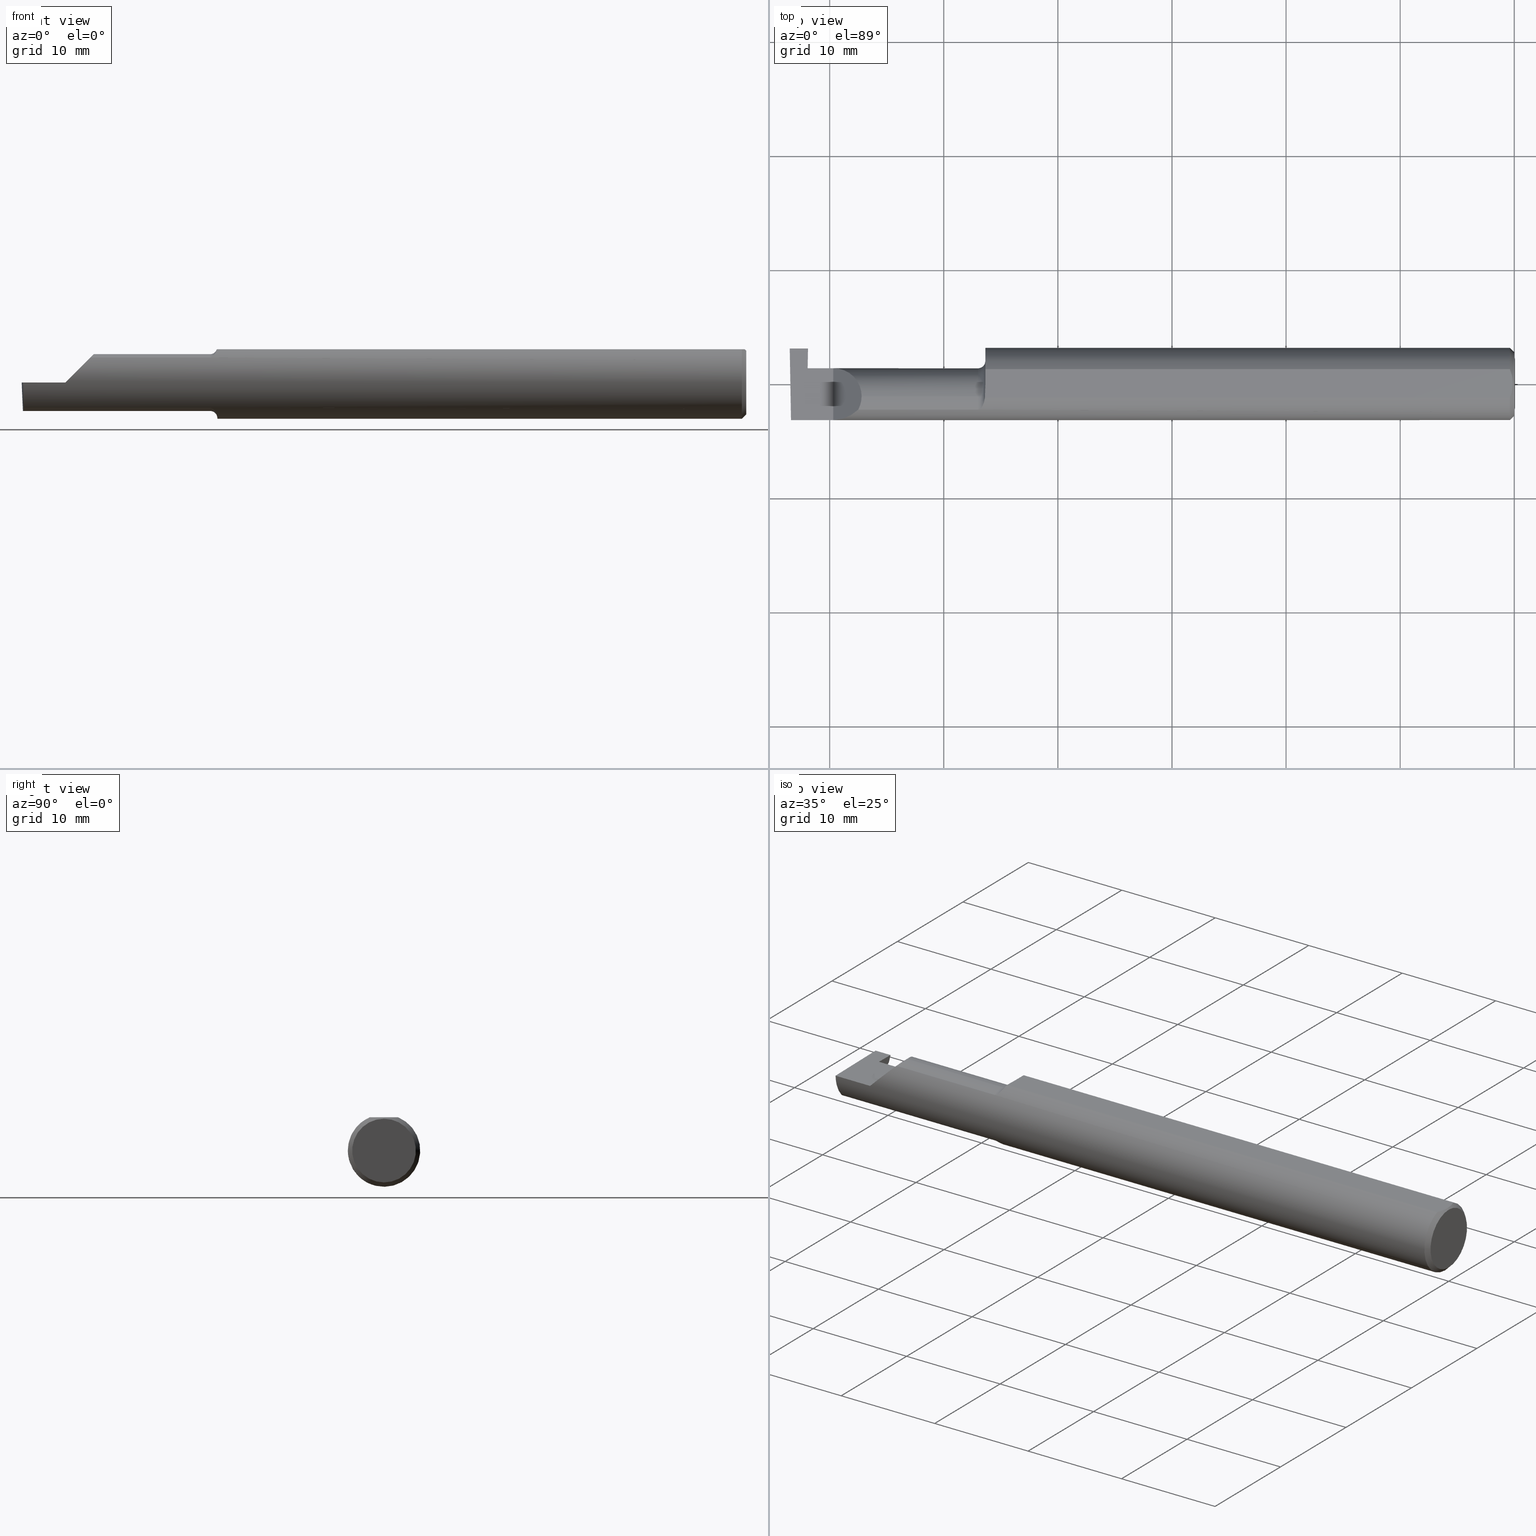
[diagram: canonical four-view strip — front | top / right | iso, engineering-drawing reading convention]
A machine part, canonical four-view strip (front | top / right | iso — engineering-drawing reading convention). The complete STEP part file that produces these views, byte-faithful:
ISO-10303-21;
HEADER;
FILE_DESCRIPTION (( 'STEP AP203' ),
    '1' );
FILE_NAME ('224726-LHGT062Q-10.STEP',
    '2025-07-01T21:56:25',
    ( '' ),
    ( '' ),
    'SwSTEP 2.0',
    'SolidWorks 2024',
    '' );
FILE_SCHEMA (( 'CONFIG_CONTROL_DESIGN' ));
ENDSEC;

DATA;
#1 = VECTOR ( 'NONE', #62, 39.37007874015748143 ) ;
#2 = EDGE_CURVE ( 'NONE', #280, #710, #288, .T. ) ;
#3 = CARTESIAN_POINT ( 'NONE',  ( -0.01499999999999987454, 0.04895916665957496944, 0.1148500000000000076 ) ) ;
#4 = PLANE ( 'NONE',  #441 ) ;
#5 = LINE ( 'NONE', #342, #208 ) ;
#6 = ORIENTED_EDGE ( 'NONE', *, *, #398, .F. ) ;
#7 = APPROVAL ( #310, 'UNSPECIFIED' ) ;
#8 = DIRECTION ( 'NONE',  ( 0.000000000000000000, -0.7071067811865462405, 0.7071067811865487940 ) ) ;
#9 = EDGE_CURVE ( 'NONE', #439, #497, #161, .T. ) ;
#10 = DIRECTION ( 'NONE',  ( -0.7071067811865476838, 0.000000000000000000, -0.7071067811865473507 ) ) ;
#11 = CARTESIAN_POINT ( 'NONE',  ( -0.004999999999999963675, -0.008410771716546847077, 0.1148500000000000215 ) ) ;
#12 = DIRECTION ( 'NONE',  ( 0.03489418134011375294, -0.0006090802009084591564, 0.9993908270190957621 ) ) ;
#13 = ADVANCED_FACE ( 'NONE', ( #749 ), #353, .F. ) ;
#14 = AXIS2_PLACEMENT_3D ( 'NONE', #468, #100, #213 ) ;
#15 = ORIENTED_EDGE ( 'NONE', *, *, #279, .F. ) ;
#16 = CARTESIAN_POINT ( 'NONE',  ( 0.000000000000000000, 0.000000000000000000, 0.000000000000000000 ) ) ;
#17 = CARTESIAN_POINT ( 'NONE',  ( -1.826326891871145941, -0.04895916665872474677, 0.1148500000000000076 ) ) ;
#18 = DIRECTION ( 'NONE',  ( 0.000000000000000000, 1.000000000000000000, 0.000000000000000000 ) ) ;
#19 = CARTESIAN_POINT ( 'NONE',  ( -2.441854867654528416, 0.002850604310161268268, -0.09800000000000001765 ) ) ;
#20 = ORIENTED_EDGE ( 'NONE', *, *, #9, .F. ) ;
#21 = CARTESIAN_POINT ( 'NONE',  ( -0.01499999999999999944, 0.000000000000000000, 0.000000000000000000 ) ) ;
#22 = CARTESIAN_POINT ( 'NONE',  ( -2.399999999999999911, 0.1138861372810479888, -0.02400000000000000050 ) ) ;
#23 = DIRECTION ( 'NONE',  ( 1.000000000000000000, -0.000000000000000000, -0.000000000000000000 ) ) ;
#24 = DIRECTION ( 'NONE',  ( 0.000000000000000000, 0.000000000000000000, 1.000000000000000000 ) ) ;
#25 = ORIENTED_EDGE ( 'NONE', *, *, #166, .F. ) ;
#26 = DATE_AND_TIME ( #586, #221 ) ;
#27 = CARTESIAN_POINT ( 'NONE',  ( -2.437982208140546891, 0.1138861372810479888, -0.02400000000000000397 ) ) ;
#28 = ORIENTED_EDGE ( 'NONE', *, *, #667, .T. ) ;
#29 = EDGE_LOOP ( 'NONE', ( #312, #356 ) ) ;
#30 = PRODUCT_DEFINITION_SHAPE ( 'NONE', 'NONE',  #109 ) ;
#31 = DIRECTION ( 'NONE',  ( 0.000000000000000000, 0.000000000000000000, -1.000000000000000000 ) ) ;
#32 = EDGE_CURVE ( 'NONE', #223, #499, #494, .T. ) ;
#33 = DIRECTION ( 'NONE',  ( -0.000000000000000000, -0.3255681544571576991, -0.9455185755993165131 ) ) ;
#34 = ORIENTED_EDGE ( 'NONE', *, *, #294, .T. ) ;
#35 =( NAMED_UNIT ( * ) SI_UNIT ( $, .STERADIAN. ) SOLID_ANGLE_UNIT ( ) );
#36 = CARTESIAN_POINT ( 'NONE',  ( -1.847259638933031578, -0.09015216647662445404, -0.08637192471845808739 ) ) ;
#37 = FACE_OUTER_BOUND ( 'NONE', #665, .T. ) ;
#38 = ORIENTED_EDGE ( 'NONE', *, *, #9, .T. ) ;
#39 = LOCAL_TIME ( 14, 56, 25.00000000000000000, #168 ) ;
#40 = AXIS2_PLACEMENT_3D ( 'NONE', #110, #537, #404 ) ;
#41 = VECTOR ( 'NONE', #207, 39.37007874015748854 ) ;
#42 = CARTESIAN_POINT ( 'NONE',  ( -1.826929090759344509, -0.05370719728932718540, -0.1128289886859672325 ) ) ;
#43 = EDGE_CURVE ( 'NONE', #202, #326, #220, .T. ) ;
#44 = ORIENTED_EDGE ( 'NONE', *, *, #727, .T. ) ;
#45 = AXIS2_PLACEMENT_3D ( 'NONE', #776, #298, #308 ) ;
#46 = CARTESIAN_POINT ( 'NONE',  ( -1.833278800716858115, -0.07573621487658313556, -0.09938639293507189887 ) ) ;
#47 = ORIENTED_EDGE ( 'NONE', *, *, #555, .T. ) ;
#48 = EDGE_CURVE ( 'NONE', #116, #547, #85, .T. ) ;
#49 = PERSON_AND_ORGANIZATION ( #224, #117 ) ;
#50 = DIRECTION ( 'NONE',  ( -0.01744642479411244104, 0.9998477995484630343, -2.135106780035405654E-18 ) ) ;
#51 = CYLINDRICAL_SURFACE ( 'NONE', #352, 0.09800000000000000377 ) ;
#52 = ORIENTED_EDGE ( 'NONE', *, *, #566, .F. ) ;
#53 = ORIENTED_EDGE ( 'NONE', *, *, #504, .F. ) ;
#54 = APPROVAL_ROLE ( '' ) ;
#55 = ADVANCED_FACE ( 'NONE', ( #295 ), #745, .T. ) ;
#56 = CARTESIAN_POINT ( 'NONE',  ( -1.849999999999999867, -0.04385000000000001397, 0.09800000000000000377 ) ) ;
#57 = ORIENTED_EDGE ( 'NONE', *, *, #453, .F. ) ;
#58 = CC_DESIGN_APPROVAL ( #7, ( #313 ) ) ;
#59 = PERSON_AND_ORGANIZATION ( #224, #117 ) ;
#60 = AXIS2_PLACEMENT_3D ( 'NONE', #226, #23, #336 ) ;
#61 = APPROVAL ( #345, 'UNSPECIFIED' ) ;
#62 = DIRECTION ( 'NONE',  ( 1.000000000000000000, -0.000000000000000000, -0.000000000000000000 ) ) ;
#63 = ORIENTED_EDGE ( 'NONE', *, *, #780, .F. ) ;
#64 = FACE_OUTER_BOUND ( 'NONE', #393, .T. ) ;
#65 = ORIENTED_EDGE ( 'NONE', *, *, #259, .T. ) ;
#66 = EDGE_CURVE ( 'NONE', #783, #710, #165, .T. ) ;
#67 = DIRECTION ( 'NONE',  ( 1.000000000000000000, -0.000000000000000000, -0.000000000000000000 ) ) ;
#68 = DIRECTION ( 'NONE',  ( 0.7071067811865459074, 0.000000000000000000, 0.7071067811865492381 ) ) ;
#69 = EDGE_CURVE ( 'NONE', #671, #773, #300, .T. ) ;
#70 = EDGE_LOOP ( 'NONE', ( #112, #618, #407, #464 ) ) ;
#71 = AXIS2_PLACEMENT_3D ( 'NONE', #463, #592, #643 ) ;
#72 = CARTESIAN_POINT ( 'NONE',  ( -2.500000000000000000, 0.07735323199453268683, -0.09800000000000001765 ) ) ;
#73 = CARTESIAN_POINT ( 'NONE',  ( -1.826365755776839572, -0.04470142088163384098, 0.1148500000000000076 ) ) ;
#74 = ORIENTED_EDGE ( 'NONE', *, *, #306, .F. ) ;
#75 = AXIS2_PLACEMENT_3D ( 'NONE', #740, #380, #204 ) ;
#76 = ADVANCED_FACE ( 'NONE', ( #332 ), #577, .F. ) ;
#77 = CARTESIAN_POINT ( 'NONE',  ( -1.827489051389806329, -0.05793447593674446588, 0.1110239341513696160 ) ) ;
#78 = CARTESIAN_POINT ( 'NONE',  ( -0.01499999999999999944, -0.04895916665957456698, 0.1148500000000000076 ) ) ;
#79 = CARTESIAN_POINT ( 'NONE',  ( -1.825000000000000400, 0.0001781444078671173391, 0.1148500000000000076 ) ) ;
#80 = B_SPLINE_CURVE_WITH_KNOTS ( 'NONE', 3,
 ( #329, #11, #568, #147, #346, #341 ),
 .UNSPECIFIED., .F., .F.,
 ( 4, 2, 4 ),
 ( 0.003658435455108829341, 0.004289327297787135992, 0.004920219140465443078 ),
 .UNSPECIFIED. ) ;
#81 = CARTESIAN_POINT ( 'NONE',  ( -1.839990549600693193, -0.08554147198584186040, 0.09096407607062395595 ) ) ;
#82 = EDGE_CURVE ( 'NONE', #613, #436, #433, .T. ) ;
#83 = CYLINDRICAL_SURFACE ( 'NONE', #767, 0.09800000000000000377 ) ;
#84 = LINE ( 'NONE', #330, #591 ) ;
#85 = LINE ( 'NONE', #286, #260 ) ;
#86 = VECTOR ( 'NONE', #729, 39.37007874015748143 ) ;
#87 = ORIENTED_EDGE ( 'NONE', *, *, #166, .T. ) ;
#88 =( CONVERSION_BASED_UNIT ( 'INCH', #418 ) LENGTH_UNIT ( ) NAMED_UNIT ( #357 ) );
#89 = CARTESIAN_POINT ( 'NONE',  ( -2.499907402661638134, 0.1211597610527450908, -0.002875862722115925512 ) ) ;
#90 = CARTESIAN_POINT ( 'NONE',  ( -2.443418903665495634, 0.05424136207626867323, -0.1499086997478103200 ) ) ;
#91 = LINE ( 'NONE', #719, #530 ) ;
#92 = EDGE_LOOP ( 'NONE', ( #252, #63, #269, #15 ) ) ;
#93 = LINE ( 'NONE', #760, #41 ) ;
#94 = VECTOR ( 'NONE', #158, 39.37007874015748143 ) ;
#95 = CARTESIAN_POINT ( 'NONE',  ( -1.826365755776840016, -0.03650543323727816619, 0.1148500000000000215 ) ) ;
#96 = CARTESIAN_POINT ( 'NONE',  ( -1.849999999999999867, -0.04385000000000001397, 0.000000000000000000 ) ) ;
#97 = ORIENTED_EDGE ( 'NONE', *, *, #271, .F. ) ;
#98 = DIRECTION ( 'NONE',  ( 1.000000000000000000, 0.000000000000000000, 0.000000000000000000 ) ) ;
#99 = LINE ( 'NONE', #415, #540 ) ;
#100 = DIRECTION ( 'NONE',  ( -0.9992391710281356421, 0.01740988840157186093, 0.03489949668475363781 ) ) ;
#101 =( BOUNDED_CURVE ( )  B_SPLINE_CURVE ( 3, ( #262, #391, #507, #621 ),
 .UNSPECIFIED., .F., .F. ) 
 B_SPLINE_CURVE_WITH_KNOTS ( ( 4, 4 ),
 ( 0.000000000000000000, 1.570796326794896558 ),
 .UNSPECIFIED. ) 
 CURVE ( )  GEOMETRIC_REPRESENTATION_ITEM ( )  RATIONAL_B_SPLINE_CURVE ( ( 1.000000000000000000, 0.8047378541243649375, 0.8047378541243649375, 1.000000000000000000 ) ) 
 REPRESENTATION_ITEM ( '' )  );
#102 = DIRECTION ( 'NONE',  ( 0.000000000000000000, 1.000000000000000000, 0.000000000000000000 ) ) ;
#103 = EDGE_CURVE ( 'NONE', #192, #365, #638, .T. ) ;
#104 = ORIENTED_EDGE ( 'NONE', *, *, #178, .F. ) ;
#105 = APPLICATION_PROTOCOL_DEFINITION ( 'international standard', 'config_control_design', 1994, #376 ) ;
#106 = ORIENTED_EDGE ( 'NONE', *, *, #435, .T. ) ;
#107 = VECTOR ( 'NONE', #12, 39.37007874015748143 ) ;
#108 = ORIENTED_EDGE ( 'NONE', *, *, #533, .F. ) ;
#109 = PRODUCT_DEFINITION ( 'UNKNOWN', '', #455, #515 ) ;
#110 = CARTESIAN_POINT ( 'NONE',  ( -1.849999999999999867, -0.04385000000000001397, 0.000000000000000000 ) ) ;
#111 = CARTESIAN_POINT ( 'NONE',  ( -2.437930235369752285, 0.1148789462830859393, -0.02300719099796206049 ) ) ;
#112 = ORIENTED_EDGE ( 'NONE', *, *, #426, .T. ) ;
#113 = DATE_AND_TIME ( #775, #419 ) ;
#114 = EDGE_CURVE ( 'NONE', #669, #305, #91, .T. ) ;
#115 = CARTESIAN_POINT ( 'NONE',  ( -2.500000000000000000, -0.1248500000000000165, 0.1148500000000000076 ) ) ;
#116 = VERTEX_POINT ( 'NONE', #355 ) ;
#117 = ORGANIZATION ( 'UNSPECIFIED', 'UNSPECIFIED', '' ) ;
#118 = DIRECTION ( 'NONE',  ( 1.224646799147353207E-16, -1.000000000000000000, 0.000000000000000000 ) ) ;
#119 = EDGE_LOOP ( 'NONE', ( #517, #238, #649, #157 ) ) ;
#120 = CALENDAR_DATE ( 2025, 1, 7 ) ;
#121 = CIRCLE ( 'NONE', #668, 0.02499999999999980016 ) ;
#122 = CARTESIAN_POINT ( 'NONE',  ( -2.495690077103728921, -0.1248499999950964945, 8.800986592364463999E-18 ) ) ;
#123 =( BOUNDED_CURVE ( )  B_SPLINE_CURVE ( 3, ( #587, #163, #405, #231 ),
 .UNSPECIFIED., .F., .F. ) 
 B_SPLINE_CURVE_WITH_KNOTS ( ( 4, 4 ),
 ( 4.463962699426424763, 4.711356644242685299 ),
 .UNSPECIFIED. ) 
 CURVE ( )  GEOMETRIC_REPRESENTATION_ITEM ( )  RATIONAL_B_SPLINE_CURVE ( ( 1.000000000000000000, 0.9949061863229000657, 0.9949061863229000657, 1.000000000000000000 ) ) 
 REPRESENTATION_ITEM ( '' )  );
#124 = EDGE_CURVE ( 'NONE', #305, #475, #428, .T. ) ;
#125 = ORIENTED_EDGE ( 'NONE', *, *, #676, .F. ) ;
#126 = APPROVAL_DATE_TIME ( #491, #7 ) ;
#127 = CARTESIAN_POINT ( 'NONE',  ( -1.840875432832431491, -0.08647060418110406876, -0.09007670266896511402 ) ) ;
#128 = EDGE_LOOP ( 'NONE', ( #106, #531, #181, #299, #778, #170, #480, #38, #617, #150, #525, #659, #758, #249 ) ) ;
#129 = CC_DESIGN_PERSON_AND_ORGANIZATION_ASSIGNMENT ( #425, #545, ( #455 ) ) ;
#130 = FACE_OUTER_BOUND ( 'NONE', #119, .T. ) ;
#131 = EDGE_LOOP ( 'NONE', ( #655, #322, #490 ) ) ;
#132 = VECTOR ( 'NONE', #608, 39.37007874015748143 ) ;
#133 = CARTESIAN_POINT ( 'NONE',  ( -0.01499999999999987454, 0.04895916665957496944, 0.1148500000000000076 ) ) ;
#134 = EDGE_CURVE ( 'NONE', #750, #223, #539, .T. ) ;
#135 = CARTESIAN_POINT ( 'NONE',  ( -1.826326891871145941, -0.04895916665872474677, 0.1148500000000000076 ) ) ;
#136 = CARTESIAN_POINT ( 'NONE',  ( -1.849999999999999867, -0.09015216647662482874, 0.08637192471845768493 ) ) ;
#137 = LINE ( 'NONE', #383, #557 ) ;
#138 = EDGE_CURVE ( 'NONE', #349, #189, #736, .T. ) ;
#139 = VERTEX_POINT ( 'NONE', #122 ) ;
#140 = CARTESIAN_POINT ( 'NONE',  ( -1.826326891871145941, -0.04895916665872474677, 0.1148500000000000076 ) ) ;
#141 = CARTESIAN_POINT ( 'NONE',  ( -1.824999999999999956, -0.04385000000000001397, 0.09800000000000000377 ) ) ;
#142 = CARTESIAN_POINT ( 'NONE',  ( -0.004999999999999962808, 0.008410227287019789166, 0.1148500000000000076 ) ) ;
#143 = CARTESIAN_POINT ( 'NONE',  ( 1.493979371535144102E-17, -1.437123018799419134E-17, 0.1098499999999999893 ) ) ;
#144 = CIRCLE ( 'NONE', #658, 0.1248500000000000026 ) ;
#145 = DIRECTION ( 'NONE',  ( -3.281464135181335381E-15, -0.9999998142845093474, -0.0006094513490877562093 ) ) ;
#146 = ADVANCED_FACE ( 'NONE', ( #663 ), #601, .T. ) ;
#147 = CARTESIAN_POINT ( 'NONE',  ( -0.009415874254822409126, -0.03313958207962817981, 0.1148500000000000076 ) ) ;
#148 = CARTESIAN_POINT ( 'NONE',  ( -2.287163018370355072, -0.1127002472623169216, 0.06283698162964553025 ) ) ;
#149 = DIRECTION ( 'NONE',  ( 0.000000000000000000, 0.000000000000000000, -1.000000000000000000 ) ) ;
#150 = ORIENTED_EDGE ( 'NONE', *, *, #788, .T. ) ;
#151 = APPROVAL ( #243, 'UNSPECIFIED' ) ;
#152 = PERSON_AND_ORGANIZATION_ROLE ( 'design_owner' ) ;
#153 = FACE_OUTER_BOUND ( 'NONE', #542, .T. ) ;
#154 = CARTESIAN_POINT ( 'NONE',  ( -1.825756598855984292, -0.04385000000000004172, -0.1168961077196328108 ) ) ;
#155 = CARTESIAN_POINT ( 'NONE',  ( -2.494256244271086054, -0.1126860773865890342, -0.06285177167860771241 ) ) ;
#156 = VECTOR ( 'NONE', #217, 39.37007874015748143 ) ;
#157 = ORIENTED_EDGE ( 'NONE', *, *, #562, .T. ) ;
#158 = DIRECTION ( 'NONE',  ( -1.000000000000000000, 0.000000000000000000, 0.000000000000000000 ) ) ;
#159 = FACE_OUTER_BOUND ( 'NONE', #128, .T. ) ;
#160 = ADVANCED_FACE ( 'NONE', ( #726 ), #183, .F. ) ;
#161 = LINE ( 'NONE', #343, #597 ) ;
#162 = AXIS2_PLACEMENT_3D ( 'NONE', #768, #771, #185 ) ;
#163 = CARTESIAN_POINT ( 'NONE',  ( -2.437660734290017395, 0.05314349951121607324, -0.01618353831829626166 ) ) ;
#164 = CARTESIAN_POINT ( 'NONE',  ( -2.437982208140546891, 0.05416464901751172345, -0.02403639734835130368 ) ) ;
#165 = LINE ( 'NONE', #413, #466 ) ;
#166 = EDGE_CURVE ( 'NONE', #499, #639, #304, .T. ) ;
#167 = EDGE_LOOP ( 'NONE', ( #258, #509, #28, #97, #44 ) ) ;
#168 = COORDINATED_UNIVERSAL_TIME_OFFSET ( 8, 0, .BEHIND. ) ;
#169 = CARTESIAN_POINT ( 'NONE',  ( -1.824999999999999956, -0.04385000000000001397, 0.000000000000000000 ) ) ;
#170 = ORIENTED_EDGE ( 'NONE', *, *, #271, .T. ) ;
#171 = CC_DESIGN_DATE_AND_TIME_ASSIGNMENT ( #113, #182, ( #313 ) ) ;
#172 = EDGE_CURVE ( 'NONE', #629, #588, #567, .T. ) ;
#173 = ORIENTED_EDGE ( 'NONE', *, *, #435, .F. ) ;
#174 = ORIENTED_EDGE ( 'NONE', *, *, #43, .F. ) ;
#175 =( LENGTH_UNIT ( ) NAMED_UNIT ( * ) SI_UNIT ( $, .METRE. ) );
#176 = CARTESIAN_POINT ( 'NONE',  ( -1.828850144156348723, -0.06295012366509138146, -0.1079450122012245855 ) ) ;
#177 = AXIS2_PLACEMENT_3D ( 'NONE', #412, #347, #452 ) ;
#178 = EDGE_CURVE ( 'NONE', #139, #596, #251, .T. ) ;
#179 = COORDINATED_UNIVERSAL_TIME_OFFSET ( 8, 0, .BEHIND. ) ;
#180 = FACE_OUTER_BOUND ( 'NONE', #354, .T. ) ;
#181 = ORIENTED_EDGE ( 'NONE', *, *, #584, .T. ) ;
#182 = DATE_TIME_ROLE ( 'classification_date' ) ;
#183 = PLANE ( 'NONE',  #267 ) ;
#184 = VECTOR ( 'NONE', #187, 39.37007874015748854 ) ;
#185 = DIRECTION ( 'NONE',  ( 1.224646799147353207E-16, -1.000000000000000000, 0.000000000000000000 ) ) ;
#186 = ORIENTED_EDGE ( 'NONE', *, *, #103, .F. ) ;
#187 = DIRECTION ( 'NONE',  ( 0.03699114979479905391, 0.7066228325057372084, 0.7066228325057346549 ) ) ;
#188 = ADVANCED_FACE ( 'NONE', ( #301 ), #536, .F. ) ;
#189 = VERTEX_POINT ( 'NONE', #716 ) ;
#190 = PERSON_AND_ORGANIZATION_ROLE ( 'design_supplier' ) ;
#191 = DIRECTION ( 'NONE',  ( -0.02617296143184117893, -0.0004568507411563385774, 0.9996573249755575929 ) ) ;
#192 = VERTEX_POINT ( 'NONE', #598 ) ;
#193 = CARTESIAN_POINT ( 'NONE',  ( -1.825000000000000400, -0.02715330672748003313, -0.1218614805168695830 ) ) ;
#194 = AXIS2_PLACEMENT_3D ( 'NONE', #606, #612, #68 ) ;
#195 = APPROVAL_PERSON_ORGANIZATION ( #240, #7, #777 ) ;
#196 = EDGE_CURVE ( 'NONE', #189, #349, #505, .T. ) ;
#197 = CARTESIAN_POINT ( 'NONE',  ( -1.826365755776839572, -0.04385000000000001397, 0.1148500000000000076 ) ) ;
#198 = CARTESIAN_POINT ( 'NONE',  ( -2.500000000000000000, -0.2000000000000000111, 0.000000000000000000 ) ) ;
#199 = ORIENTED_EDGE ( 'NONE', *, *, #389, .F. ) ;
#200 = CC_DESIGN_PERSON_AND_ORGANIZATION_ASSIGNMENT ( #49, #190, ( #455 ) ) ;
#201 = CARTESIAN_POINT ( 'NONE',  ( -1.849999999999999867, -0.04385000000000001397, 0.000000000000000000 ) ) ;
#202 = VERTEX_POINT ( 'NONE', #56 ) ;
#203 = CARTESIAN_POINT ( 'NONE',  ( -1.845195245915135285, -0.08928014009840809506, 0.08728826463238045785 ) ) ;
#204 = DIRECTION ( 'NONE',  ( 0.000000000000000000, 0.000000000000000000, 1.000000000000000000 ) ) ;
#205 = CARTESIAN_POINT ( 'NONE',  ( -2.500000000000000000, 0.1221500000000000224, 1.614031285319217924E-16 ) ) ;
#206 = ADVANCED_FACE ( 'NONE', ( #180 ), #423, .T. ) ;
#207 = DIRECTION ( 'NONE',  ( 0.03866673033866221965, 0.3253246823342271221, 0.9448114812114907224 ) ) ;
#208 = VECTOR ( 'NONE', #18, 39.37007874015748143 ) ;
#209 = CARTESIAN_POINT ( 'NONE',  ( -1.824999999999999956, -0.03284222813693381954, -0.1205938689030582739 ) ) ;
#210 = DIRECTION ( 'NONE',  ( 0.000000000000000000, 0.000000000000000000, -1.000000000000000000 ) ) ;
#211 = CC_DESIGN_APPROVAL ( #151, ( #455 ) ) ;
#212 = PLANE ( 'NONE',  #222 ) ;
#213 = DIRECTION ( 'NONE',  ( -0.03490478697967554916, 0.000000000000000000, -0.9993906422645267851 ) ) ;
#214 = CARTESIAN_POINT ( 'NONE',  ( -2.494033449660867152, -0.09015216647662482874, -0.08637192471845768493 ) ) ;
#215 = ORIENTED_EDGE ( 'NONE', *, *, #389, .T. ) ;
#216 = APPROVAL_ROLE ( '' ) ;
#217 = DIRECTION ( 'NONE',  ( 1.000000000000000000, -0.000000000000000000, -0.000000000000000000 ) ) ;
#218 = FACE_OUTER_BOUND ( 'NONE', #70, .T. ) ;
#219 = DIRECTION ( 'NONE',  ( 1.000000000000000000, -0.000000000000000000, -0.000000000000000000 ) ) ;
#220 = CIRCLE ( 'NONE', #664, 0.09800000000000000377 ) ;
#221 = LOCAL_TIME ( 14, 56, 25.00000000000000000, #701 ) ;
#222 = AXIS2_PLACEMENT_3D ( 'NONE', #22, #8, #276 ) ;
#223 = VERTEX_POINT ( 'NONE', #244 ) ;
#224 = PERSON ( 'UNSPECIFIED', 'UNSPECIFIED', 'UNSPECIFIED', ('UNSPECIFIED'), ('UNSPECIFIED'), ('UNSPECIFIED') ) ;
#225 = ADVANCED_FACE ( 'NONE', ( #489 ), #228, .F. ) ;
#226 = CARTESIAN_POINT ( 'NONE',  ( -1.824999999999999956, -0.04385000000000001397, 0.000000000000000000 ) ) ;
#227 = DIRECTION ( 'NONE',  ( -0.01742050049977935181, -0.9998482515673751125, -2.130797594925150286E-18 ) ) ;
#228 = TOROIDAL_SURFACE ( 'NONE', #432, 0.1230000000000000121, 0.02499999999999980016 ) ;
#229 = ORIENTED_EDGE ( 'NONE', *, *, #504, .T. ) ;
#230 =( NAMED_UNIT ( * ) PLANE_ANGLE_UNIT ( ) SI_UNIT ( $, .RADIAN. ) );
#231 = CARTESIAN_POINT ( 'NONE',  ( -2.436999999999999833, 0.05414999123725446062, -4.144270477499314721E-05 ) ) ;
#232 = CARTESIAN_POINT ( 'NONE',  ( -2.252000000000000668, -0.06008937020638503712, 0.09799999999999998990 ) ) ;
#233 = EDGE_CURVE ( 'NONE', #365, #639, #272, .T. ) ;
#234 = ORIENTED_EDGE ( 'NONE', *, *, #650, .T. ) ;
#235 = CARTESIAN_POINT ( 'NONE',  ( -1.835226514481665516, -0.07966992494485836129, -0.09623747760188229583 ) ) ;
#236 = B_SPLINE_CURVE_WITH_KNOTS ( 'NONE', 3,
 ( #140, #77, #680, #382, #625, #81, #570, #203, #378, #136 ),
 .UNSPECIFIED., .F., .F.,
 ( 4, 2, 2, 2, 4 ),
 ( 5.065792319871578098E-07, 0.0007388407001989738283, 0.001108007760682467799, 0.001292591290924215109, 0.001477174821165962420 ),
 .UNSPECIFIED. ) ;
#237 = ADVANCED_FACE ( 'NONE', ( #738 ), #511, .F. ) ;
#238 = ORIENTED_EDGE ( 'NONE', *, *, #315, .T. ) ;
#239 = VECTOR ( 'NONE', #191, 39.37007874015748854 ) ;
#240 = PERSON_AND_ORGANIZATION ( #224, #117 ) ;
#241 = CARTESIAN_POINT ( 'NONE',  ( 0.000000000000000000, 0.1248500000000000026, -0.1248500000000000026 ) ) ;
#242 = ORIENTED_EDGE ( 'NONE', *, *, #124, .F. ) ;
#243 = APPROVAL_STATUS ( 'not_yet_approved' ) ;
#244 = CARTESIAN_POINT ( 'NONE',  ( -2.436999999999999833, 0.05415000000000000369, 8.266364455779613651E-17 ) ) ;
#245 = VECTOR ( 'NONE', #630, 39.37007874015748143 ) ;
#246 = ORIENTED_EDGE ( 'NONE', *, *, #656, .T. ) ;
#247 = DATE_AND_TIME ( #770, #39 ) ;
#248 = EDGE_CURVE ( 'NONE', #773, #202, #552, .T. ) ;
#249 = ORIENTED_EDGE ( 'NONE', *, *, #82, .F. ) ;
#250 = ADVANCED_FACE ( 'NONE', ( #64 ), #681, .F. ) ;
#251 = LINE ( 'NONE', #543, #563 ) ;
#252 = ORIENTED_EDGE ( 'NONE', *, *, #705, .F. ) ;
#253 = VECTOR ( 'NONE', #67, 39.37007874015748143 ) ;
#254 = CARTESIAN_POINT ( 'NONE',  ( -1.826362484150213072, -0.04555293709188820706, 0.1148500000000000076 ) ) ;
#255 = ORIENTED_EDGE ( 'NONE', *, *, #338, .T. ) ;
#256 = UNCERTAINTY_MEASURE_WITH_UNIT (LENGTH_MEASURE( 1.000000000000000082E-05 ), #88, 'distance_accuracy_value', 'NONE');
#257 = DIRECTION ( 'NONE',  ( 7.219510806010324627E-16, 0.9999998142845092364, 0.0006094513490878470654 ) ) ;
#258 = ORIENTED_EDGE ( 'NONE', *, *, #594, .F. ) ;
#259 = EDGE_CURVE ( 'NONE', #693, #202, #121, .T. ) ;
#260 = VECTOR ( 'NONE', #227, 39.37007874015748854 ) ;
#261 = AXIS2_PLACEMENT_3D ( 'NONE', #72, #323, #564 ) ;
#262 = CARTESIAN_POINT ( 'NONE',  ( -2.252000000000000668, -0.04385000000000001397, 0.09800000000000000377 ) ) ;
#263 = VECTOR ( 'NONE', #461, 39.37007874015748143 ) ;
#264 = ORIENTED_EDGE ( 'NONE', *, *, #233, .F. ) ;
#265 = B_SPLINE_CURVE_WITH_KNOTS ( 'NONE', 3,
 ( #154, #752, #209, #687 ),
 .UNSPECIFIED., .F., .F.,
 ( 4, 4 ),
 ( 0.001640801893433563134, 0.002088276671954477758 ),
 .UNSPECIFIED. ) ;
#266 = LINE ( 'NONE', #616, #239 ) ;
#267 = AXIS2_PLACEMENT_3D ( 'NONE', #241, #670, #118 ) ;
#268 = ORIENTED_EDGE ( 'NONE', *, *, #338, .F. ) ;
#269 = ORIENTED_EDGE ( 'NONE', *, *, #774, .F. ) ;
#270 = CARTESIAN_POINT ( 'NONE',  ( -0.009410502401328735278, 0.03310661131402437007, 0.1148499999999999938 ) ) ;
#271 = EDGE_CURVE ( 'NONE', #688, #679, #761, .T. ) ;
#272 = LINE ( 'NONE', #320, #325 ) ;
#273 = CARTESIAN_POINT ( 'NONE',  ( -2.494536841675280225, -0.04385000000000003478, -0.09799999999999998990 ) ) ;
#274 = CARTESIAN_POINT ( 'NONE',  ( -2.494082244196984099, -0.07583965973232817404, -0.09404455760388209795 ) ) ;
#275 = CARTESIAN_POINT ( 'NONE',  ( -1.826365755776839572, -0.04385000000000001397, 0.1148500000000000076 ) ) ;
#276 = DIRECTION ( 'NONE',  ( -0.000000000000000000, -0.7071067811865487940, -0.7071067811865462405 ) ) ;
#277 = AXIS2_PLACEMENT_3D ( 'NONE', #285, #755, #713 ) ;
#278 = CARTESIAN_POINT ( 'NONE',  ( -1.825400391910593445, -0.01449986171080063641, 0.1148500000000000076 ) ) ;
#279 = EDGE_CURVE ( 'NONE', #417, #623, #735, .T. ) ;
#280 = VERTEX_POINT ( 'NONE', #193 ) ;
#281 = LINE ( 'NONE', #751, #156 ) ;
#282 = CARTESIAN_POINT ( 'NONE',  ( -1.826090261609496723, -0.02916889382056605043, 0.1148499999999999938 ) ) ;
#283 = CARTESIAN_POINT ( 'NONE',  ( -2.440353341463135539, 0.03970102213383035900, -0.06931214282740397192 ) ) ;
#284 = ORIENTED_EDGE ( 'NONE', *, *, #369, .F. ) ;
#285 = CARTESIAN_POINT ( 'NONE',  ( -1.849999999999999867, -0.04385000000000001397, 0.000000000000000000 ) ) ;
#286 = CARTESIAN_POINT ( 'NONE',  ( -2.442630281473412435, -0.2009995608920633059, 7.025764216157014493E-18 ) ) ;
#287 = EDGE_LOOP ( 'NONE', ( #199, #457, #108 ) ) ;
#288 = CIRCLE ( 'NONE', #662, 0.1248500000000000026 ) ;
#289 = APPROVAL_DATE_TIME ( #26, #61 ) ;
#290 = CARTESIAN_POINT ( 'NONE',  ( 0.000000000000000000, 0.000000000000000000, 0.000000000000000000 ) ) ;
#291 = PRODUCT ( '224726-LHGT062Q-10', '224726-LHGT062Q-10', '', ( #340 ) ) ;
#292 = VECTOR ( 'NONE', #603, 39.37007874015748854 ) ;
#293 = CARTESIAN_POINT ( 'NONE',  ( -2.350000000000000089, 0.05414999999999988572, 1.836970198721028825E-17 ) ) ;
#294 = EDGE_CURVE ( 'NONE', #436, #139, #266, .T. ) ;
#295 = FACE_OUTER_BOUND ( 'NONE', #131, .T. ) ;
#296 =( BOUNDED_CURVE ( )  B_SPLINE_CURVE ( 3, ( #635, #569, #148, #472 ),
 .UNSPECIFIED., .F., .F. ) 
 B_SPLINE_CURVE_WITH_KNOTS ( ( 4, 4 ),
 ( 4.712388980384690562, 5.476375539154175520 ),
 .UNSPECIFIED. ) 
 CURVE ( )  GEOMETRIC_REPRESENTATION_ITEM ( )  RATIONAL_B_SPLINE_CURVE ( ( 1.000000000000000000, 0.9519489620492029847, 0.9519489620492029847, 1.000000000000000000 ) ) 
 REPRESENTATION_ITEM ( '' )  );
#297 = ORIENTED_EDGE ( 'NONE', *, *, #449, .F. ) ;
#298 = DIRECTION ( 'NONE',  ( 1.000000000000000000, -0.000000000000000000, -0.000000000000000000 ) ) ;
#299 = ORIENTED_EDGE ( 'NONE', *, *, #2, .T. ) ;
#300 =( BOUNDED_CURVE ( )  B_SPLINE_CURVE ( 3, ( #763, #524, #232, #478 ),
 .UNSPECIFIED., .F., .F. ) 
 B_SPLINE_CURVE_WITH_KNOTS ( ( 4, 4 ),
 ( 5.791092865617133434, 6.283185307179586232 ),
 .UNSPECIFIED. ) 
 CURVE ( )  GEOMETRIC_REPRESENTATION_ITEM ( )  RATIONAL_B_SPLINE_CURVE ( ( 1.000000000000000000, 0.9799220177372784946, 0.9799220177372784946, 1.000000000000000000 ) ) 
 REPRESENTATION_ITEM ( '' )  );
#301 = FACE_OUTER_BOUND ( 'NONE', #287, .T. ) ;
#302 = ORIENTED_EDGE ( 'NONE', *, *, #705, .T. ) ;
#303 = APPROVAL_DATE_TIME ( #307, #151 ) ;
#304 = LINE ( 'NONE', #363, #292 ) ;
#305 = VERTEX_POINT ( 'NONE', #438 ) ;
#306 = EDGE_CURVE ( 'NONE', #497, #693, #743, .T. ) ;
#307 = DATE_AND_TIME ( #120, #551 ) ;
#308 = DIRECTION ( 'NONE',  ( 0.000000000000000000, 0.000000000000000000, 1.000000000000000000 ) ) ;
#309 = ORIENTED_EDGE ( 'NONE', *, *, #233, .T. ) ;
#310 = APPROVAL_STATUS ( 'not_yet_approved' ) ;
#311 = CARTESIAN_POINT ( 'NONE',  ( -2.350000000000000089, -0.1248500000000000026, 1.836970198721028825E-17 ) ) ;
#312 = ORIENTED_EDGE ( 'NONE', *, *, #196, .F. ) ;
#313 = SECURITY_CLASSIFICATION ( '', '', #717 ) ;
#314 = DIRECTION ( 'NONE',  ( 1.000000000000000000, -0.000000000000000000, -0.000000000000000000 ) ) ;
#315 = EDGE_CURVE ( 'NONE', #773, #750, #101, .T. ) ;
#316 = ORIENTED_EDGE ( 'NONE', *, *, #555, .F. ) ;
#317 = DIRECTION ( 'NONE',  ( 0.01744642479411243410, -0.9998477995484630343, 2.816882764651548725E-16 ) ) ;
#318 = ORIENTED_EDGE ( 'NONE', *, *, #306, .T. ) ;
#319 = CARTESIAN_POINT ( 'NONE',  ( -1.825000000000000400, 0.04895916665957496944, 0.1148500000000000076 ) ) ;
#320 = CARTESIAN_POINT ( 'NONE',  ( -2.437982208140548224, -2.385405252369069640, -0.02552319679206714598 ) ) ;
#321 = AXIS2_PLACEMENT_3D ( 'NONE', #535, #708, #573 ) ;
#322 = ORIENTED_EDGE ( 'NONE', *, *, #718, .F. ) ;
#323 = DIRECTION ( 'NONE',  ( 0.000000000000000000, 2.817424862263050982E-16, 1.000000000000000000 ) ) ;
#324 = CARTESIAN_POINT ( 'NONE',  ( -2.496652745773395576, 0.07741163850316090667, -0.09800000000000001765 ) ) ;
#325 = VECTOR ( 'NONE', #257, 39.37007874015748854 ) ;
#326 = VERTEX_POINT ( 'NONE', #565 ) ;
#327 = ADVANCED_FACE ( 'NONE', ( #496 ), #4, .F. ) ;
#328 = CARTESIAN_POINT ( 'NONE',  ( -0.01193974418109659125, 0.04115525648180411861, 0.1148500000000000215 ) ) ;
#329 = CARTESIAN_POINT ( 'NONE',  ( -0.004999999999999990563, -1.358826068685392540E-17, 0.1148500000000000076 ) ) ;
#330 = CARTESIAN_POINT ( 'NONE',  ( -0.01499999999999999944, 0.000000000000000000, -0.1248500000000000026 ) ) ;
#331 = DIRECTION ( 'NONE',  ( -0.05230943362268657137, 0.0006086169641122237328, -0.9986307389317959915 ) ) ;
#332 = FACE_OUTER_BOUND ( 'NONE', #599, .T. ) ;
#333 = ORIENTED_EDGE ( 'NONE', *, *, #780, .T. ) ;
#334 = CARTESIAN_POINT ( 'NONE',  ( -1.825000000000000400, 0.0001781444078671173391, 0.1148500000000000076 ) ) ;
#335 = DIRECTION ( 'NONE',  ( 1.000000000000000000, -0.000000000000000000, -0.000000000000000000 ) ) ;
#336 = DIRECTION ( 'NONE',  ( 0.000000000000000000, 0.000000000000000000, 1.000000000000000000 ) ) ;
#337 = CARTESIAN_POINT ( 'NONE',  ( -2.441853376795600994, -0.04385000000000004172, -0.09799999999999998990 ) ) ;
#338 = EDGE_CURVE ( 'NONE', #116, #596, #683, .T. ) ;
#339 = ORIENTED_EDGE ( 'NONE', *, *, #788, .F. ) ;
#340 = MECHANICAL_CONTEXT ( 'NONE', #376, 'mechanical' ) ;
#341 = CARTESIAN_POINT ( 'NONE',  ( -0.01499999999999999944, -0.04895916665957456698, 0.1148500000000000076 ) ) ;
#342 = CARTESIAN_POINT ( 'NONE',  ( -2.350000000000000089, -0.2000000000000000111, 1.836970198721028825E-17 ) ) ;
#343 = CARTESIAN_POINT ( 'NONE',  ( 0.000000000000000000, -0.04895916665957456698, 0.1148500000000000076 ) ) ;
#344 = VERTEX_POINT ( 'NONE', #311 ) ;
#345 = APPROVAL_STATUS ( 'not_yet_approved' ) ;
#346 = CARTESIAN_POINT ( 'NONE',  ( -0.01195732443765547791, -0.04120008761723505802, 0.1148500000000000076 ) ) ;
#347 = DIRECTION ( 'NONE',  ( -1.000000000000000000, 0.000000000000000000, 0.000000000000000000 ) ) ;
#348 = CARTESIAN_POINT ( 'NONE',  ( -1.825000000000000400, 0.1541499999999999537, 0.000000000000000000 ) ) ;
#349 = VERTEX_POINT ( 'NONE', #143 ) ;
#350 = EDGE_CURVE ( 'NONE', #547, #223, #137, .T. ) ;
#351 = APPLICATION_PROTOCOL_DEFINITION ( 'international standard', 'config_control_design', 1994, #460 ) ;
#352 = AXIS2_PLACEMENT_3D ( 'NONE', #674, #386, #462 ) ;
#353 = PLANE ( 'NONE',  #387 ) ;
#354 = EDGE_LOOP ( 'NONE', ( #20, #57, #503, #297, #728, #52, #74 ) ) ;
#355 = CARTESIAN_POINT ( 'NONE',  ( -2.436999999999999833, 0.1221499999999999808, -3.306546357697866753E-19 ) ) ;
#356 = ORIENTED_EDGE ( 'NONE', *, *, #138, .F. ) ;
#357 = DIMENSIONAL_EXPONENTS ( 1.000000000000000000, 0.000000000000000000, 0.000000000000000000, 0.000000000000000000, 0.000000000000000000, 0.000000000000000000, 0.000000000000000000 ) ;
#358 = DIRECTION ( 'NONE',  ( 0.000000000000000000, 0.000000000000000000, 1.000000000000000000 ) ) ;
#359 = AXIS2_PLACEMENT_3D ( 'NONE', #348, #704, #210 ) ;
#360 = VECTOR ( 'NONE', #580, 39.37007874015748143 ) ;
#361 = AXIS2_PLACEMENT_3D ( 'NONE', #290, #335, #575 ) ;
#362 = DATE_TIME_ROLE ( 'creation_date' ) ;
#363 = CARTESIAN_POINT ( 'NONE',  ( -2.437982208140546891, 0.05416464901750549232, -0.02403639734835130368 ) ) ;
#364 = ADVANCED_FACE ( 'NONE', ( #130 ), #374, .F. ) ;
#365 = VERTEX_POINT ( 'NONE', #560 ) ;
#366 = AXIS2_PLACEMENT_3D ( 'NONE', #115, #358, #541 ) ;
#367 = ORIENTED_EDGE ( 'NONE', *, *, #566, .T. ) ;
#368 = VERTEX_POINT ( 'NONE', #571 ) ;
#369 = EDGE_CURVE ( 'NONE', #365, #499, #123, .T. ) ;
#370 = CARTESIAN_POINT ( 'NONE',  ( -1.825756598855984292, -0.04385000000000004172, -0.1168961077196328108 ) ) ;
#371 = ORIENTED_EDGE ( 'NONE', *, *, #398, .T. ) ;
#372 = COORDINATED_UNIVERSAL_TIME_OFFSET ( 8, 0, .BEHIND. ) ;
#373 = ADVANCED_FACE ( 'NONE', ( #153 ), #212, .F. ) ;
#374 = PLANE ( 'NONE',  #194 ) ;
#375 = ORIENTED_EDGE ( 'NONE', *, *, #259, .F. ) ;
#376 = APPLICATION_CONTEXT ( 'configuration controlled 3d designs of mechanical parts and assemblies' ) ;
#377 = VECTOR ( 'NONE', #756, 39.37007874015748143 ) ;
#378 = CARTESIAN_POINT ( 'NONE',  ( -1.847502509400819060, -0.09015216647698111319, 0.08637192471808594063 ) ) ;
#379 =( BOUNDED_CURVE ( )  B_SPLINE_CURVE ( 3, ( #447, #274, #553, #611 ),
 .UNSPECIFIED., .F., .F. ) 
 B_SPLINE_CURVE_WITH_KNOTS ( ( 4, 4 ),
 ( 0.09562308769838283318, 0.5877155292608426951 ),
 .UNSPECIFIED. ) 
 CURVE ( )  GEOMETRIC_REPRESENTATION_ITEM ( )  RATIONAL_B_SPLINE_CURVE ( ( 1.000000000000000000, 0.9799220177372778284, 0.9799220177372778284, 1.000000000000000000 ) ) 
 REPRESENTATION_ITEM ( '' )  );
#380 = DIRECTION ( 'NONE',  ( -1.000000000000000000, 0.000000000000000000, 0.000000000000000000 ) ) ;
#381 = ORIENTED_EDGE ( 'NONE', *, *, #32, .T. ) ;
#382 = CARTESIAN_POINT ( 'NONE',  ( -1.834117122045868520, -0.07738857672815888100, 0.09808127502738701875 ) ) ;
#383 = CARTESIAN_POINT ( 'NONE',  ( -2.499999999999999112, 0.05415000000000022573, 1.021359390568321941E-31 ) ) ;
#384 = DIRECTION ( 'NONE',  ( 0.000000000000000000, 0.000000000000000000, 1.000000000000000000 ) ) ;
#385 = DIRECTION ( 'NONE',  ( 0.000000000000000000, 1.000000000000000000, -0.000000000000000000 ) ) ;
#386 = DIRECTION ( 'NONE',  ( 1.000000000000000000, -0.000000000000000000, -0.000000000000000000 ) ) ;
#387 = AXIS2_PLACEMENT_3D ( 'NONE', #692, #628, #33 ) ;
#388 = ORIENTED_EDGE ( 'NONE', *, *, #248, .F. ) ;
#389 = EDGE_CURVE ( 'NONE', #588, #326, #631, .T. ) ;
#390 = CARTESIAN_POINT ( 'NONE',  ( -0.004999999999999990563, -1.358826068685392540E-17, 0.1148500000000000076 ) ) ;
#391 = CARTESIAN_POINT ( 'NONE',  ( -2.252000000000000668, 0.01355707088743670317, 0.09799999999999996214 ) ) ;
#392 = LINE ( 'NONE', #90, #107 ) ;
#393 = EDGE_LOOP ( 'NONE', ( #284, #309, #25 ) ) ;
#394 = CARTESIAN_POINT ( 'NONE',  ( -2.441856049968029296, 0.05420972092307226736, -0.09799127047100435195 ) ) ;
#395 = CARTESIAN_POINT ( 'NONE',  ( -1.849999999999999867, -0.09015216647662478711, -0.08637192471845771269 ) ) ;
#396 = EDGE_LOOP ( 'NONE', ( #471, #483, #414, #605, #675 ) ) ;
#397 = CARTESIAN_POINT ( 'NONE',  ( -2.252000000000000668, -0.04385000000000001397, 0.09800000000000000377 ) ) ;
#398 = EDGE_CURVE ( 'NONE', #596, #368, #626, .T. ) ;
#399 = APPROVAL_PERSON_ORGANIZATION ( #476, #61, #216 ) ;
#400 = DIRECTION ( 'NONE',  ( 0.000000000000000000, 0.000000000000000000, 1.000000000000000000 ) ) ;
#401 = AXIS2_PLACEMENT_3D ( 'NONE', #21, #652, #31 ) ;
#402 = VECTOR ( 'NONE', #534, 39.37007874015748143 ) ;
#403 = CARTESIAN_POINT ( 'NONE',  ( -2.494835769263151537, -0.1248351010429638169, -0.03262966116142150541 ) ) ;
#404 = DIRECTION ( 'NONE',  ( 0.000000000000000000, 0.000000000000000000, 1.000000000000000000 ) ) ;
#405 = CARTESIAN_POINT ( 'NONE',  ( -2.437331655309490142, 0.05414656493488109040, -0.008143655253979651190 ) ) ;
#406 = PLANE ( 'NONE',  #14 ) ;
#407 = ORIENTED_EDGE ( 'NONE', *, *, #650, .F. ) ;
#408 = AXIS2_PLACEMENT_3D ( 'NONE', #660, #492, #482 ) ;
#409 = EDGE_LOOP ( 'NONE', ( #388, #487, #339, #246 ) ) ;
#410 = CARTESIAN_POINT ( 'NONE',  ( -2.441857246117858260, 0.07735508812990761485, -0.09800000000000001765 ) ) ;
#411 = CARTESIAN_POINT ( 'NONE',  ( -1.849999999999999867, -0.04385000000000003478, -0.1230000000000000121 ) ) ;
#412 = CARTESIAN_POINT ( 'NONE',  ( -1.849999999999999867, -0.04385000000000001397, 0.000000000000000000 ) ) ;
#413 = CARTESIAN_POINT ( 'NONE',  ( -1.825000000000000400, -0.1248500000000000165, 0.1148500000000000076 ) ) ;
#414 = ORIENTED_EDGE ( 'NONE', *, *, #453, .T. ) ;
#415 = CARTESIAN_POINT ( 'NONE',  ( 0.000000000000000000, 0.04895916665957456698, 0.1148500000000000076 ) ) ;
#416 = ORIENTED_EDGE ( 'NONE', *, *, #43, .T. ) ;
#417 = VERTEX_POINT ( 'NONE', #690 ) ;
#418 = LENGTH_MEASURE_WITH_UNIT ( LENGTH_MEASURE( 0.02539999999999999897 ), #175 );
#419 = LOCAL_TIME ( 14, 56, 25.00000000000000000, #431 ) ;
#420 = DIRECTION ( 'NONE',  ( -1.000000000000000000, 0.000000000000000000, 0.000000000000000000 ) ) ;
#421 = ORIENTED_EDGE ( 'NONE', *, *, #350, .T. ) ;
#422 = APPROVAL_PERSON_ORGANIZATION ( #59, #151, #54 ) ;
#423 = PLANE ( 'NONE',  #366 ) ;
#424 = EDGE_LOOP ( 'NONE', ( #589, #754, #446, #430, #651, #255, #104 ) ) ;
#425 = PERSON_AND_ORGANIZATION ( #224, #117 ) ;
#426 = EDGE_CURVE ( 'NONE', #475, #116, #93, .T. ) ;
#427 = B_SPLINE_CURVE_WITH_KNOTS ( 'NONE', 3,
 ( #275, #95, #282, #278, #523, #79 ),
 .UNSPECIFIED., .F., .F.,
 ( 4, 2, 4 ),
 ( 0.009485158816280120364, 0.01004274199597734486, 0.01060032517567456936 ),
 .UNSPECIFIED. ) ;
#428 = LINE ( 'NONE', #111, #184 ) ;
#429 = ADVANCED_FACE ( 'NONE', ( #633 ), #83, .T. ) ;
#430 = ORIENTED_EDGE ( 'NONE', *, *, #350, .F. ) ;
#431 = COORDINATED_UNIVERSAL_TIME_OFFSET ( 8, 0, .BEHIND. ) ;
#432 = AXIS2_PLACEMENT_3D ( 'NONE', #201, #314, #789 ) ;
#433 =( BOUNDED_CURVE ( )  B_SPLINE_CURVE ( 3, ( #214, #155, #403, #636 ),
 .UNSPECIFIED., .F., .F. ) 
 B_SPLINE_CURVE_WITH_KNOTS ( ( 4, 4 ),
 ( 0.2190942387645742062, 0.9826237902197102470 ),
 .UNSPECIFIED. ) 
 CURVE ( )  GEOMETRIC_REPRESENTATION_ITEM ( )  RATIONAL_B_SPLINE_CURVE ( ( 1.000000000000000000, 0.9520057322288819623, 0.9520057322288819623, 1.000000000000000000 ) ) 
 REPRESENTATION_ITEM ( '' )  );
#434 = DIRECTION ( 'NONE',  ( -1.000000000000000000, 0.000000000000000000, 0.000000000000000000 ) ) ;
#435 = EDGE_CURVE ( 'NONE', #613, #629, #697, .T. ) ;
#436 = VERTEX_POINT ( 'NONE', #641 ) ;
#437 = PERSON_AND_ORGANIZATION ( #224, #117 ) ;
#438 = CARTESIAN_POINT ( 'NONE',  ( -2.441106678051653489, 0.05420100202804416234, -0.08368513525297122113 ) ) ;
#439 = VERTEX_POINT ( 'NONE', #78 ) ;
#440 = AXIS2_PLACEMENT_3D ( 'NONE', #16, #521, #98 ) ;
#441 = AXIS2_PLACEMENT_3D ( 'NONE', #444, #451, #549 ) ;
#442 = CARTESIAN_POINT ( 'NONE',  ( -1.826365755776839572, -0.04385000000000001397, 0.1148500000000000076 ) ) ;
#443 = CARTESIAN_POINT ( 'NONE',  ( -3.749399456654637998E-32, -0.1248500000000000026, 3.061616997868380676E-16 ) ) ;
#444 = CARTESIAN_POINT ( 'NONE',  ( -2.441856049968030629, -2.385360180463502289, -0.09947806991472020466 ) ) ;
#445 = EDGE_LOOP ( 'NONE', ( #186, #333, #610, #720, #264 ) ) ;
#446 = ORIENTED_EDGE ( 'NONE', *, *, #134, .T. ) ;
#447 = CARTESIAN_POINT ( 'NONE',  ( -2.494033449660867152, -0.09015216647662482874, -0.08637192471845768493 ) ) ;
#448 = CARTESIAN_POINT ( 'NONE',  ( -2.437982208140548224, -2.385405252369069640, -0.02552319679206714598 ) ) ;
#449 = EDGE_CURVE ( 'NONE', #710, #688, #99, .T. ) ;
#450 = EDGE_LOOP ( 'NONE', ( #268, #544, #645, #6 ) ) ;
#451 = DIRECTION ( 'NONE',  ( -0.9986309243930281410, -3.188005489064654573E-05, 0.05230942390801442132 ) ) ;
#452 = DIRECTION ( 'NONE',  ( 0.000000000000000000, 0.000000000000000000, 1.000000000000000000 ) ) ;
#453 = EDGE_CURVE ( 'NONE', #607, #439, #80, .T. ) ;
#454 = CARTESIAN_POINT ( 'NONE',  ( -2.143499999999999961, -0.09015216647662482874, -0.08637192471845768493 ) ) ;
#455 = PRODUCT_DEFINITION_FORMATION_WITH_SPECIFIED_SOURCE ( 'ANY', '', #291, .NOT_KNOWN. ) ;
#456 = FACE_OUTER_BOUND ( 'NONE', #514, .T. ) ;
#457 = ORIENTED_EDGE ( 'NONE', *, *, #172, .F. ) ;
#458 = EDGE_CURVE ( 'NONE', #639, #305, #527, .T. ) ;
#459 = CARTESIAN_POINT ( 'NONE',  ( -2.500000000000000000, -0.04385000000000002091, -0.09799999999999998990 ) ) ;
#460 = APPLICATION_CONTEXT ( 'configuration controlled 3d designs of mechanical parts and assemblies' ) ;
#461 = DIRECTION ( 'NONE',  ( 1.000000000000000000, -0.000000000000000000, -0.000000000000000000 ) ) ;
#462 = DIRECTION ( 'NONE',  ( 0.000000000000000000, 0.000000000000000000, 1.000000000000000000 ) ) ;
#463 = CARTESIAN_POINT ( 'NONE',  ( -2.436999999999999833, -0.04385000000000001397, 0.000000000000000000 ) ) ;
#464 = ORIENTED_EDGE ( 'NONE', *, *, #124, .T. ) ;
#465 = FACE_OUTER_BOUND ( 'NONE', #396, .T. ) ;
#466 = VECTOR ( 'NONE', #102, 39.37007874015748143 ) ;
#467 = CARTESIAN_POINT ( 'NONE',  ( -1.849999999999999867, -0.09015216647662482874, 0.08637192471845768493 ) ) ;
#468 = CARTESIAN_POINT ( 'NONE',  ( -2.442234127201016847, 0.1222413620301362608, -0.1499086240528643421 ) ) ;
#469 = VECTOR ( 'NONE', #317, 39.37007874015747433 ) ;
#470 = ORIENTED_EDGE ( 'NONE', *, *, #696, .F. ) ;
#471 = ORIENTED_EDGE ( 'NONE', *, *, #196, .T. ) ;
#472 = CARTESIAN_POINT ( 'NONE',  ( -2.263628075281542529, -0.09015216647662421812, 0.08637192471845822617 ) ) ;
#473 = EDGE_LOOP ( 'NONE', ( #53, #764, #725, #766, #574, #661, #593, #416 ) ) ;
#474 = AXIS2_PLACEMENT_3D ( 'NONE', #448, #782, #609 ) ;
#475 = VERTEX_POINT ( 'NONE', #27 ) ;
#476 = PERSON_AND_ORGANIZATION ( #224, #117 ) ;
#477 = DIRECTION ( 'NONE',  ( 0.000000000000000000, -1.000000000000000000, 1.224646799147353207E-16 ) ) ;
#478 = CARTESIAN_POINT ( 'NONE',  ( -2.252000000000000668, -0.04385000000000001397, 0.09800000000000000377 ) ) ;
#479 = ADVANCED_FACE ( 'NONE', ( #159 ), #516, .T. ) ;
#480 = ORIENTED_EDGE ( 'NONE', *, *, #604, .T. ) ;
#481 = LINE ( 'NONE', #711, #360 ) ;
#482 = DIRECTION ( 'NONE',  ( 1.224646799147353207E-16, -1.000000000000000000, 0.000000000000000000 ) ) ;
#483 = ORIENTED_EDGE ( 'NONE', *, *, #594, .T. ) ;
#484 = SHAPE_DEFINITION_REPRESENTATION ( #30, #632 ) ;
#485 = AXIS2_PLACEMENT_3D ( 'NONE', #627, #145, #622 ) ;
#486 = DIRECTION ( 'NONE',  ( 0.000000000000000000, 0.000000000000000000, -1.000000000000000000 ) ) ;
#487 = ORIENTED_EDGE ( 'NONE', *, *, #69, .F. ) ;
#488 = CALENDAR_DATE ( 2025, 1, 7 ) ;
#489 = FACE_OUTER_BOUND ( 'NONE', #769, .T. ) ;
#490 = ORIENTED_EDGE ( 'NONE', *, *, #66, .T. ) ;
#491 = DATE_AND_TIME ( #488, #637 ) ;
#492 = DIRECTION ( 'NONE',  ( -1.000000000000000000, -1.224646799147353207E-16, -0.000000000000000000 ) ) ;
#493 = ORIENTED_EDGE ( 'NONE', *, *, #584, .F. ) ;
#494 = CIRCLE ( 'NONE', #71, 0.09800000000000000377 ) ;
#495 = CARTESIAN_POINT ( 'NONE',  ( -0.01499999999999999944, 0.000000000000000000, 0.000000000000000000 ) ) ;
#496 = FACE_OUTER_BOUND ( 'NONE', #445, .T. ) ;
#497 = VERTEX_POINT ( 'NONE', #17 ) ;
#498 = CARTESIAN_POINT ( 'NONE',  ( -1.849999999999999867, -0.04385000000000001397, 0.1230000000000000121 ) ) ;
#499 = VERTEX_POINT ( 'NONE', #747 ) ;
#500 = VECTOR ( 'NONE', #694, 39.37007874015748143 ) ;
#501 = VECTOR ( 'NONE', #331, 39.37007874015748143 ) ;
#502 = DIRECTION ( 'NONE',  ( 1.000000000000000000, 0.000000000000000000, 1.224646799147352221E-16 ) ) ;
#503 = ORIENTED_EDGE ( 'NONE', *, *, #727, .F. ) ;
#504 = EDGE_CURVE ( 'NONE', #192, #326, #281, .T. ) ;
#505 = CIRCLE ( 'NONE', #162, 0.1098499999999999893 ) ;
#506 = LINE ( 'NONE', #737, #132 ) ;
#507 = CARTESIAN_POINT ( 'NONE',  ( -2.292592929112563738, 0.05415000000000004532, 0.05740707088743669112 ) ) ;
#508 = ORIENTED_EDGE ( 'NONE', *, *, #774, .T. ) ;
#509 = ORIENTED_EDGE ( 'NONE', *, *, #138, .T. ) ;
#510 = CARTESIAN_POINT ( 'NONE',  ( -0.005947935873631213927, 0.01679708999422687907, 0.1148500000000000076 ) ) ;
#511 = PLANE ( 'NONE',  #702 ) ;
#512 = CARTESIAN_POINT ( 'NONE',  ( -0.004999999999999990563, -1.358826068685392540E-17, 0.1148500000000000076 ) ) ;
#513 = CARTESIAN_POINT ( 'NONE',  ( -2.441856049968028852, 0.03988613728104772188, -0.09799999999999998990 ) ) ;
#514 = EDGE_LOOP ( 'NONE', ( #585, #234, #421, #381, #87 ) ) ;
#515 = DESIGN_CONTEXT ( 'detailed design', #460, 'design' ) ;
#516 = CYLINDRICAL_SURFACE ( 'NONE', #361, 0.1248500000000000026 ) ;
#517 = ORIENTED_EDGE ( 'NONE', *, *, #69, .T. ) ;
#518 = CC_DESIGN_DATE_AND_TIME_ASSIGNMENT ( #247, #362, ( #109 ) ) ;
#519 =( GEOMETRIC_REPRESENTATION_CONTEXT ( 3 ) GLOBAL_UNCERTAINTY_ASSIGNED_CONTEXT ( ( #256 ) ) GLOBAL_UNIT_ASSIGNED_CONTEXT ( ( #88, #230, #35 ) ) REPRESENTATION_CONTEXT ( 'NONE', 'WORKASPACE' ) );
#520 = ORIENTED_EDGE ( 'NONE', *, *, #114, .F. ) ;
#521 = DIRECTION ( 'NONE',  ( 0.000000000000000000, 0.000000000000000000, 1.000000000000000000 ) ) ;
#522 = DIRECTION ( 'NONE',  ( 1.000000000000000000, -0.000000000000000000, -0.000000000000000000 ) ) ;
#523 = CARTESIAN_POINT ( 'NONE',  ( -1.824999999999999956, -0.007185469346090044528, 0.1148500000000000076 ) ) ;
#524 = CARTESIAN_POINT ( 'NONE',  ( -2.255955442396118560, -0.07583965973232772995, 0.09404455760388213958 ) ) ;
#525 = ORIENTED_EDGE ( 'NONE', *, *, #562, .F. ) ;
#526 = PERSON_AND_ORGANIZATION ( #224, #117 ) ;
#527 = LINE ( 'NONE', #394, #501 ) ;
#528 = CYLINDRICAL_SURFACE ( 'NONE', #60, 0.09800000000000000377 ) ;
#529 = VERTEX_POINT ( 'NONE', #467 ) ;
#530 = VECTOR ( 'NONE', #538, 39.37007874015748143 ) ;
#531 = ORIENTED_EDGE ( 'NONE', *, *, #172, .T. ) ;
#532 = PERSON_AND_ORGANIZATION ( #224, #117 ) ;
#533 = EDGE_CURVE ( 'NONE', #326, #629, #787, .T. ) ;
#534 = DIRECTION ( 'NONE',  ( 0.03042981077198511977, -0.3254173858243485373, -0.9450807116958996890 ) ) ;
#535 = CARTESIAN_POINT ( 'NONE',  ( -2.497382703856815933, 0.1221956850741156148, -0.09996573249755576207 ) ) ;
#536 = TOROIDAL_SURFACE ( 'NONE', #45, 0.1230000000000000121, 0.02499999999999980016 ) ;
#537 = DIRECTION ( 'NONE',  ( 1.000000000000000000, -0.000000000000000000, -0.000000000000000000 ) ) ;
#538 = DIRECTION ( 'NONE',  ( 0.03699114979479498078, 0.7066228325057373194, 0.7066228325057347659 ) ) ;
#539 = LINE ( 'NONE', #723, #615 ) ;
#540 = VECTOR ( 'NONE', #522, 39.37007874015748143 ) ;
#541 = DIRECTION ( 'NONE',  ( -1.000000000000000000, 0.000000000000000000, 0.000000000000000000 ) ) ;
#542 = EDGE_LOOP ( 'NONE', ( #579, #242, #520, #302, #316 ) ) ;
#543 = CARTESIAN_POINT ( 'NONE',  ( -2.494380489674781209, -0.1999019447116721915, 6.881915332554697616E-19 ) ) ;
#544 = ORIENTED_EDGE ( 'NONE', *, *, #426, .F. ) ;
#545 = PERSON_AND_ORGANIZATION_ROLE ( 'creator' ) ;
#546 = CARTESIAN_POINT ( 'NONE',  ( -1.826227715916085126, -0.04883822427082840784, -0.1150249279297937549 ) ) ;
#547 = VERTEX_POINT ( 'NONE', #772 ) ;
#548 = ADVANCED_FACE ( 'NONE', ( #37 ), #51, .T. ) ;
#549 = DIRECTION ( 'NONE',  ( -0.05230942393459644957, 0.000000000000000000, -0.9986309249005013156 ) ) ;
#550 = EDGE_LOOP ( 'NONE', ( #318, #65, #700, #470 ) ) ;
#551 = LOCAL_TIME ( 14, 56, 25.00000000000000000, #179 ) ;
#552 = LINE ( 'NONE', #141, #1 ) ;
#553 = CARTESIAN_POINT ( 'NONE',  ( -2.494253479596434175, -0.06008937020638527304, -0.09800000000000000377 ) ) ;
#554 = CARTESIAN_POINT ( 'NONE',  ( -1.826349474474288082, -0.04725615793094951195, 0.1148499999999999938 ) ) ;
#555 = EDGE_CURVE ( 'NONE', #368, #417, #576, .T. ) ;
#556 = CC_DESIGN_APPROVAL ( #61, ( #109 ) ) ;
#557 = VECTOR ( 'NONE', #673, 39.37007874015748143 ) ;
#558 = B_SPLINE_CURVE_WITH_KNOTS ( 'NONE', 3,
 ( #3, #328, #270, #510, #142, #390 ),
 .UNSPECIFIED., .F., .F.,
 ( 4, 2, 4 ),
 ( 0.002396733445051246140, 0.003027584450080037740, 0.003658435455108829341 ),
 .UNSPECIFIED. ) ;
#559 = DIRECTION ( 'NONE',  ( -1.000000000000000000, 0.000000000000000000, 0.000000000000000000 ) ) ;
#560 = CARTESIAN_POINT ( 'NONE',  ( -2.437982208140546891, 0.05115612325138245431, -0.02403823089877875005 ) ) ;
#561 = CC_DESIGN_PERSON_AND_ORGANIZATION_ASSIGNMENT ( #532, #707, ( #109 ) ) ;
#562 = EDGE_CURVE ( 'NONE', #344, #671, #296, .T. ) ;
#563 = VECTOR ( 'NONE', #50, 39.37007874015747433 ) ;
#564 = DIRECTION ( 'NONE',  ( 0.000000000000000000, -1.000000000000000000, 2.817424862263050982E-16 ) ) ;
#565 = CARTESIAN_POINT ( 'NONE',  ( -1.849999999999999867, -0.04385000000000003478, -0.09800000000000000377 ) ) ;
#566 = EDGE_CURVE ( 'NONE', #693, #783, #427, .T. ) ;
#567 = B_SPLINE_CURVE_WITH_KNOTS ( 'NONE', 3,
 ( #595, #36, #666, #127, #600, #235, #46, #712, #176, #42, #546, #370 ),
 .UNSPECIFIED., .F., .F.,
 ( 4, 2, 2, 2, 2, 4 ),
 ( 1.963988863383734834E-07, 0.0002052720857047454339, 0.0004103477725231525239, 0.0008204991461599561329, 0.001230650519796759471, 0.001640801893433563134 ),
 .UNSPECIFIED. ) ;
#568 = CARTESIAN_POINT ( 'NONE',  ( -0.005932194444709712640, -0.01671525318617311795, 0.1148499999999999938 ) ) ;
#569 = CARTESIAN_POINT ( 'NONE',  ( -2.317406910344188997, -0.1248500000000000304, 0.03259308965581166062 ) ) ;
#570 = CARTESIAN_POINT ( 'NONE',  ( -1.841486677516400272, -0.08696861555842264058, 0.08959154238194114162 ) ) ;
#571 = CARTESIAN_POINT ( 'NONE',  ( -2.499227245409318066, 0.1138861372810480027, -0.02399999999999999356 ) ) ;
#572 = CARTESIAN_POINT ( 'NONE',  ( -0.01499999999999999944, -1.528971528735470422E-17, 0.1248500000000000026 ) ) ;
#573 = DIRECTION ( 'NONE',  ( -0.02618093032612054880, 0.000000000000000000, 0.9996572206948033390 ) ) ;
#574 = ORIENTED_EDGE ( 'NONE', *, *, #134, .F. ) ;
#575 = DIRECTION ( 'NONE',  ( 0.000000000000000000, 0.000000000000000000, 1.000000000000000000 ) ) ;
#576 = LINE ( 'NONE', #691, #715 ) ;
#577 = PLANE ( 'NONE',  #321 ) ;
#578 = EDGE_CURVE ( 'NONE', #344, #750, #5, .T. ) ;
#579 = ORIENTED_EDGE ( 'NONE', *, *, #741, .F. ) ;
#580 = DIRECTION ( 'NONE',  ( -1.000000000000000000, 0.000000000000000000, 0.000000000000000000 ) ) ;
#581 = DIRECTION ( 'NONE',  ( 0.000000000000000000, 0.000000000000000000, -1.000000000000000000 ) ) ;
#582 = CARTESIAN_POINT ( 'NONE',  ( -2.494033449660867152, -0.09015216647662482874, -0.08637192471845768493 ) ) ;
#583 = DIRECTION ( 'NONE',  ( -1.000000000000000000, 0.000000000000000000, 0.000000000000000000 ) ) ;
#584 = EDGE_CURVE ( 'NONE', #588, #280, #265, .T. ) ;
#585 = ORIENTED_EDGE ( 'NONE', *, *, #458, .T. ) ;
#586 = CALENDAR_DATE ( 2025, 1, 7 ) ;
#587 = CARTESIAN_POINT ( 'NONE',  ( -2.437982208140546891, 0.05115612325138245431, -0.02403823089877875005 ) ) ;
#588 = VERTEX_POINT ( 'NONE', #703 ) ;
#589 = ORIENTED_EDGE ( 'NONE', *, *, #709, .T. ) ;
#590 = CC_DESIGN_PERSON_AND_ORGANIZATION_ASSIGNMENT ( #526, #152, ( #291 ) ) ;
#591 = VECTOR ( 'NONE', #10, 39.37007874015748143 ) ;
#592 = DIRECTION ( 'NONE',  ( -1.000000000000000000, 0.000000000000000000, 0.000000000000000000 ) ) ;
#593 = ORIENTED_EDGE ( 'NONE', *, *, #248, .T. ) ;
#594 = EDGE_CURVE ( 'NONE', #349, #607, #748, .T. ) ;
#595 = CARTESIAN_POINT ( 'NONE',  ( -1.849999999999999867, -0.09015216647662478711, -0.08637192471845771269 ) ) ;
#596 = VERTEX_POINT ( 'NONE', #205 ) ;
#597 = VECTOR ( 'NONE', #757, 39.37007874015748143 ) ;
#598 = CARTESIAN_POINT ( 'NONE',  ( -2.441853376795600994, -0.04385000000000004172, -0.09799999999999998990 ) ) ;
#599 = EDGE_LOOP ( 'NONE', ( #125, #653, #34, #781, #371, #47, #706 ) ) ;
#600 = CARTESIAN_POINT ( 'NONE',  ( -1.839311064734462153, -0.08485061678078631431, -0.09161469295857084527 ) ) ;
#601 = CONICAL_SURFACE ( 'NONE', #620, 0.1248500000000000026, 0.7853981633974480570 ) ;
#602 = ORIENTED_EDGE ( 'NONE', *, *, #533, .T. ) ;
#603 = DIRECTION ( 'NONE',  ( -0.04089968566330322991, 0.0006089413954177148435, -0.9991630722274617016 ) ) ;
#604 = EDGE_CURVE ( 'NONE', #679, #439, #144, .T. ) ;
#605 = ORIENTED_EDGE ( 'NONE', *, *, #604, .F. ) ;
#606 = CARTESIAN_POINT ( 'NONE',  ( -2.350000000000000089, -0.2000000000000000111, 1.836970198721028825E-17 ) ) ;
#607 = VERTEX_POINT ( 'NONE', #512 ) ;
#608 = DIRECTION ( 'NONE',  ( -1.000000000000000000, 0.000000000000000000, 0.000000000000000000 ) ) ;
#609 = DIRECTION ( 'NONE',  ( -0.04089967808030401525, 0.000000000000000000, -0.9991632580979583622 ) ) ;
#610 = ORIENTED_EDGE ( 'NONE', *, *, #114, .T. ) ;
#611 = CARTESIAN_POINT ( 'NONE',  ( -2.494536841675280225, -0.04385000000000003478, -0.09799999999999998990 ) ) ;
#612 = DIRECTION ( 'NONE',  ( 0.7071067811865492381, 0.000000000000000000, -0.7071067811865459074 ) ) ;
#613 = VERTEX_POINT ( 'NONE', #582 ) ;
#614 = PLANE ( 'NONE',  #261 ) ;
#615 = VECTOR ( 'NONE', #420, 39.37007874015748143 ) ;
#616 = CARTESIAN_POINT ( 'NONE',  ( -2.493072779947982820, -0.1248043149033065263, -0.09996577117162364079 ) ) ;
#617 = ORIENTED_EDGE ( 'NONE', *, *, #696, .T. ) ;
#618 = ORIENTED_EDGE ( 'NONE', *, *, #48, .T. ) ;
#619 = ADVANCED_FACE ( 'NONE', ( #742 ), #528, .T. ) ;
#620 = AXIS2_PLACEMENT_3D ( 'NONE', #495, #434, #486 ) ;
#621 = CARTESIAN_POINT ( 'NONE',  ( -2.350000000000000089, 0.05414999999999988572, 1.836970198721028825E-17 ) ) ;
#622 = DIRECTION ( 'NONE',  ( 0.000000000000000000, 0.0006094513490877561009, -0.9999998142845092364 ) ) ;
#623 = VERTEX_POINT ( 'NONE', #273 ) ;
#624 = PRODUCT_RELATED_PRODUCT_CATEGORY ( 'detail', '', ( #291 ) ) ;
#625 = CARTESIAN_POINT ( 'NONE',  ( -1.836053217927678949, -0.08094812012684945990, 0.09514231764822853044 ) ) ;
#626 = LINE ( 'NONE', #89, #402 ) ;
#627 = CARTESIAN_POINT ( 'NONE',  ( -2.443418903665495634, 0.05424136207626867323, -0.1499086997478103200 ) ) ;
#628 = DIRECTION ( 'NONE',  ( 0.000000000000000000, -0.9455185755993165131, 0.3255681544571576991 ) ) ;
#629 = VERTEX_POINT ( 'NONE', #395 ) ;
#630 = DIRECTION ( 'NONE',  ( -3.192376091677033339E-05, 0.9999999994904366085, -2.817425088418965374E-16 ) ) ;
#631 = CIRCLE ( 'NONE', #734, 0.02499999999999980016 ) ;
#632 = ADVANCED_BREP_SHAPE_REPRESENTATION ( '224726-LHGT062Q-10', ( #722, #440 ), #519 ) ;
#633 = FACE_OUTER_BOUND ( 'NONE', #409, .T. ) ;
#634 = ADVANCED_FACE ( 'NONE', ( #218 ), #406, .F. ) ;
#635 = CARTESIAN_POINT ( 'NONE',  ( -2.350000000000000089, -0.1248500000000000026, 1.836970198721028825E-17 ) ) ;
#636 = CARTESIAN_POINT ( 'NONE',  ( -2.495688583004118666, -0.1248499869621840785, -5.705736120965713455E-05 ) ) ;
#637 = LOCAL_TIME ( 14, 56, 25.00000000000000000, #372 ) ;
#638 =( BOUNDED_CURVE ( )  B_SPLINE_CURVE ( 3, ( #337, #19, #283, #753 ),
 .UNSPECIFIED., .F., .F. ) 
 B_SPLINE_CURVE_WITH_KNOTS ( ( 4, 4 ),
 ( 3.140983202202990654, 4.463962699426421210 ),
 .UNSPECIFIED. ) 
 CURVE ( )  GEOMETRIC_REPRESENTATION_ITEM ( )  RATIONAL_B_SPLINE_CURVE ( ( 1.000000000000000000, 0.8593853101475603662, 0.8593853101475603662, 1.000000000000000000 ) ) 
 REPRESENTATION_ITEM ( '' )  );
#639 = VERTEX_POINT ( 'NONE', #164 ) ;
#640 = LINE ( 'NONE', #759, #94 ) ;
#641 = CARTESIAN_POINT ( 'NONE',  ( -2.495688583004118666, -0.1248499869621840785, -5.705736120965713455E-05 ) ) ;
#642 = DIRECTION ( 'NONE',  ( 0.03084274406794365597, -0.7067703747110382073, -0.7067703747110356538 ) ) ;
#643 = DIRECTION ( 'NONE',  ( 0.000000000000000000, 0.000000000000000000, 1.000000000000000000 ) ) ;
#644 = ADVANCED_FACE ( 'NONE', ( #456 ), #698, .F. ) ;
#645 = ORIENTED_EDGE ( 'NONE', *, *, #741, .T. ) ;
#646 = LINE ( 'NONE', #410, #245 ) ;
#647 = DIRECTION ( 'NONE',  ( 1.000000000000000000, -0.000000000000000000, -0.000000000000000000 ) ) ;
#648 = DIRECTION ( 'NONE',  ( -1.000000000000000000, 0.000000000000000000, 0.000000000000000000 ) ) ;
#649 = ORIENTED_EDGE ( 'NONE', *, *, #578, .F. ) ;
#650 = EDGE_CURVE ( 'NONE', #305, #547, #392, .T. ) ;
#651 = ORIENTED_EDGE ( 'NONE', *, *, #48, .F. ) ;
#652 = DIRECTION ( 'NONE',  ( -1.000000000000000000, 0.000000000000000000, 0.000000000000000000 ) ) ;
#653 = ORIENTED_EDGE ( 'NONE', *, *, #82, .T. ) ;
#654 = CC_DESIGN_SECURITY_CLASSIFICATION ( #313, ( #455 ) ) ;
#655 = ORIENTED_EDGE ( 'NONE', *, *, #2, .F. ) ;
#656 = EDGE_CURVE ( 'NONE', #529, #202, #746, .T. ) ;
#657 = LINE ( 'NONE', #459, #500 ) ;
#658 = AXIS2_PLACEMENT_3D ( 'NONE', #684, #648, #400 ) ;
#659 = ORIENTED_EDGE ( 'NONE', *, *, #709, .F. ) ;
#660 = CARTESIAN_POINT ( 'NONE',  ( 1.493979371535144102E-17, -9.778804691191602334E-18, 0.000000000000000000 ) ) ;
#661 = ORIENTED_EDGE ( 'NONE', *, *, #315, .F. ) ;
#662 = AXIS2_PLACEMENT_3D ( 'NONE', #699, #219, #149 ) ;
#663 = FACE_OUTER_BOUND ( 'NONE', #167, .T. ) ;
#664 = AXIS2_PLACEMENT_3D ( 'NONE', #96, #583, #24 ) ;
#665 = EDGE_LOOP ( 'NONE', ( #508, #229, #602, #173, #714 ) ) ;
#666 = CARTESIAN_POINT ( 'NONE',  ( -1.844784064659362732, -0.08911389870154515225, -0.08746251087962811366 ) ) ;
#667 = EDGE_CURVE ( 'NONE', #189, #679, #84, .T. ) ;
#668 = AXIS2_PLACEMENT_3D ( 'NONE', #498, #385, #732 ) ;
#669 = VERTEX_POINT ( 'NONE', #513 ) ;
#670 = DIRECTION ( 'NONE',  ( -1.000000000000000000, -1.224646799147353207E-16, 0.000000000000000000 ) ) ;
#671 = VERTEX_POINT ( 'NONE', #744 ) ;
#672 = PERSON_AND_ORGANIZATION_ROLE ( 'classification_officer' ) ;
#673 = DIRECTION ( 'NONE',  ( 1.000000000000000000, -3.281539380878421255E-15, 1.224646799147352221E-16 ) ) ;
#674 = CARTESIAN_POINT ( 'NONE',  ( -1.824999999999999956, -0.04385000000000001397, 0.000000000000000000 ) ) ;
#675 = ORIENTED_EDGE ( 'NONE', *, *, #667, .F. ) ;
#676 = EDGE_CURVE ( 'NONE', #613, #623, #379, .T. ) ;
#677 = CARTESIAN_POINT ( 'NONE',  ( -0.01499999999999999944, 0.000000000000000000, -0.1248500000000000026 ) ) ;
#678 = CARTESIAN_POINT ( 'NONE',  ( -2.399999999999999911, 0.1221499999999999808, -3.306546357697866753E-19 ) ) ;
#679 = VERTEX_POINT ( 'NONE', #677 ) ;
#680 = CARTESIAN_POINT ( 'NONE',  ( -1.829335346929611861, -0.06618116991694673878, 0.1062694618620808051 ) ) ;
#681 = PLANE ( 'NONE',  #474 ) ;
#682 = CARTESIAN_POINT ( 'NONE',  ( -1.825000000000000400, -0.04385000000000001397, 0.000000000000000000 ) ) ;
#683 = LINE ( 'NONE', #678, #86 ) ;
#684 = CARTESIAN_POINT ( 'NONE',  ( -0.01499999999999999944, 0.000000000000000000, 0.000000000000000000 ) ) ;
#685 = CIRCLE ( 'NONE', #786, 0.1230000000000000121 ) ;
#686 = DIRECTION ( 'NONE',  ( 0.000000000000000000, 0.000000000000000000, 1.000000000000000000 ) ) ;
#687 = CARTESIAN_POINT ( 'NONE',  ( -1.825000000000000400, -0.02715330672748003313, -0.1218614805168695830 ) ) ;
#688 = VERTEX_POINT ( 'NONE', #133 ) ;
#689 = FACE_OUTER_BOUND ( 'NONE', #550, .T. ) ;
#690 = CARTESIAN_POINT ( 'NONE',  ( -2.495997960279815242, 0.03988613728104774270, -0.09799999999999996214 ) ) ;
#691 = CARTESIAN_POINT ( 'NONE',  ( -2.499132853025170853, 0.1117231085775383936, -0.02616302870350959223 ) ) ;
#692 = CARTESIAN_POINT ( 'NONE',  ( -2.399999999999999911, 0.1221499999999999808, -3.306546357697866753E-19 ) ) ;
#693 = VERTEX_POINT ( 'NONE', #197 ) ;
#694 = DIRECTION ( 'NONE',  ( 1.000000000000000000, -0.000000000000000000, -0.000000000000000000 ) ) ;
#695 = CONICAL_SURFACE ( 'NONE', #401, 0.1248500000000000026, 0.7853981633974480570 ) ;
#696 = EDGE_CURVE ( 'NONE', #497, #529, #236, .T. ) ;
#697 = LINE ( 'NONE', #454, #263 ) ;
#698 = PLANE ( 'NONE',  #485 ) ;
#699 = CARTESIAN_POINT ( 'NONE',  ( -1.825000000000000400, 0.000000000000000000, 0.000000000000000000 ) ) ;
#700 = ORIENTED_EDGE ( 'NONE', *, *, #656, .F. ) ;
#701 = COORDINATED_UNIVERSAL_TIME_OFFSET ( 8, 0, .BEHIND. ) ;
#702 = AXIS2_PLACEMENT_3D ( 'NONE', #198, #779, #502 ) ;
#703 = CARTESIAN_POINT ( 'NONE',  ( -1.825756598855984292, -0.04385000000000004172, -0.1168961077196328108 ) ) ;
#704 = DIRECTION ( 'NONE',  ( -1.000000000000000000, 0.000000000000000000, 0.000000000000000000 ) ) ;
#705 = EDGE_CURVE ( 'NONE', #669, #417, #506, .T. ) ;
#706 = ORIENTED_EDGE ( 'NONE', *, *, #279, .T. ) ;
#707 = PERSON_AND_ORGANIZATION_ROLE ( 'creator' ) ;
#708 = DIRECTION ( 'NONE',  ( 0.9995051766793263681, 0.01744044634006990460, 0.02617694830739123249 ) ) ;
#709 = EDGE_CURVE ( 'NONE', #139, #344, #784, .T. ) ;
#710 = VERTEX_POINT ( 'NONE', #319 ) ;
#711 = CARTESIAN_POINT ( 'NONE',  ( -2.399999999999999911, 0.1138861372810479888, -0.02400000000000000050 ) ) ;
#712 = CARTESIAN_POINT ( 'NONE',  ( -1.830064983703084902, -0.06736177101644115484, -0.1052426774175050372 ) ) ;
#713 = DIRECTION ( 'NONE',  ( 0.000000000000000000, 0.000000000000000000, 1.000000000000000000 ) ) ;
#714 = ORIENTED_EDGE ( 'NONE', *, *, #676, .T. ) ;
#715 = VECTOR ( 'NONE', #642, 39.37007874015748854 ) ;
#716 = CARTESIAN_POINT ( 'NONE',  ( 1.493979371535143794E-17, 0.000000000000000000, -0.1098499999999999893 ) ) ;
#717 = SECURITY_CLASSIFICATION_LEVEL ( 'unclassified' ) ;
#718 = EDGE_CURVE ( 'NONE', #783, #280, #685, .T. ) ;
#719 = CARTESIAN_POINT ( 'NONE',  ( -2.437930235369751841, 0.1148789462830858144, -0.02300719099796217151 ) ) ;
#720 = ORIENTED_EDGE ( 'NONE', *, *, #458, .F. ) ;
#721 = ADVANCED_FACE ( 'NONE', ( #739 ), #614, .F. ) ;
#722 = MANIFOLD_SOLID_BREP ( 'Cut-Extrude1', #724 ) ;
#723 = CARTESIAN_POINT ( 'NONE',  ( -1.824999999999999956, 0.05414999999999998981, 8.266365894244626938E-17 ) ) ;
#724 = CLOSED_SHELL ( 'NONE', ( #548, #619, #225, #762, #730, #479, #206, #237, #364, #146, #188, #55, #429, #721, #373, #13, #644, #634, #327, #250, #76, #160 ) ) ;
#725 = ORIENTED_EDGE ( 'NONE', *, *, #369, .T. ) ;
#726 = FACE_OUTER_BOUND ( 'NONE', #29, .T. ) ;
#727 = EDGE_CURVE ( 'NONE', #688, #607, #558, .T. ) ;
#728 = ORIENTED_EDGE ( 'NONE', *, *, #66, .F. ) ;
#729 = DIRECTION ( 'NONE',  ( -1.000000000000000000, 0.000000000000000000, 0.000000000000000000 ) ) ;
#730 = ADVANCED_FACE ( 'NONE', ( #465 ), #695, .T. ) ;
#731 = ORIENTED_EDGE ( 'NONE', *, *, #718, .T. ) ;
#732 = DIRECTION ( 'NONE',  ( 0.000000000000000000, 0.000000000000000000, 1.000000000000000000 ) ) ;
#733 = TOROIDAL_SURFACE ( 'NONE', #40, 0.1230000000000000121, 0.02499999999999980016 ) ;
#734 = AXIS2_PLACEMENT_3D ( 'NONE', #411, #477, #581 ) ;
#735 = LINE ( 'NONE', #324, #469 ) ;
#736 = CIRCLE ( 'NONE', #408, 0.1098499999999999893 ) ;
#737 = CARTESIAN_POINT ( 'NONE',  ( -2.500000000000000000, 0.03988613728104772188, -0.09800000000000000377 ) ) ;
#738 = FACE_OUTER_BOUND ( 'NONE', #424, .T. ) ;
#739 = FACE_OUTER_BOUND ( 'NONE', #92, .T. ) ;
#740 = CARTESIAN_POINT ( 'NONE',  ( -0.01499999999999999944, 0.000000000000000000, 0.000000000000000000 ) ) ;
#741 = EDGE_CURVE ( 'NONE', #475, #368, #481, .T. ) ;
#742 = FACE_OUTER_BOUND ( 'NONE', #473, .T. ) ;
#743 = B_SPLINE_CURVE_WITH_KNOTS ( 'NONE', 3,
 ( #135, #785, #554, #254, #73, #442 ),
 .UNSPECIFIED., .F., .F.,
 ( 4, 2, 4 ),
 ( 0.009355882855483742266, 0.009420520835881931315, 0.009485158816280120364 ),
 .UNSPECIFIED. ) ;
#744 = CARTESIAN_POINT ( 'NONE',  ( -2.263628075281542529, -0.09015216647662421812, 0.08637192471845822617 ) ) ;
#745 = PLANE ( 'NONE',  #359 ) ;
#746 = CIRCLE ( 'NONE', #177, 0.09800000000000000377 ) ;
#747 = CARTESIAN_POINT ( 'NONE',  ( -2.436999999999999833, 0.05414999123725446062, -4.144270477499314721E-05 ) ) ;
#748 = LINE ( 'NONE', #572, #377 ) ;
#749 = FACE_OUTER_BOUND ( 'NONE', #450, .T. ) ;
#750 = VERTEX_POINT ( 'NONE', #293 ) ;
#751 = CARTESIAN_POINT ( 'NONE',  ( -1.824999999999999956, -0.04385000000000002091, -0.09800000000000000377 ) ) ;
#752 = CARTESIAN_POINT ( 'NONE',  ( -1.825242610568498236, -0.03840785182185599278, -0.1189375631818110624 ) ) ;
#753 = CARTESIAN_POINT ( 'NONE',  ( -2.437982208140546891, 0.05115612325138245431, -0.02403823089877875005 ) ) ;
#754 = ORIENTED_EDGE ( 'NONE', *, *, #578, .T. ) ;
#755 = DIRECTION ( 'NONE',  ( -1.000000000000000000, 0.000000000000000000, 0.000000000000000000 ) ) ;
#756 = DIRECTION ( 'NONE',  ( -0.7071067811865476838, -8.659560562354930393E-17, 0.7071067811865473507 ) ) ;
#757 = DIRECTION ( 'NONE',  ( -1.000000000000000000, 0.000000000000000000, 0.000000000000000000 ) ) ;
#758 = ORIENTED_EDGE ( 'NONE', *, *, #294, .F. ) ;
#759 = CARTESIAN_POINT ( 'NONE',  ( -2.143499999999999961, -0.09015216647662482874, 0.08637192471845768493 ) ) ;
#760 = CARTESIAN_POINT ( 'NONE',  ( -2.436944680706702115, 0.1226154319452801428, 0.001351712518300434178 ) ) ;
#761 = CIRCLE ( 'NONE', #75, 0.1248500000000000026 ) ;
#762 = ADVANCED_FACE ( 'NONE', ( #689 ), #733, .F. ) ;
#763 = CARTESIAN_POINT ( 'NONE',  ( -2.263628075281542529, -0.09015216647662421812, 0.08637192471845822617 ) ) ;
#764 = ORIENTED_EDGE ( 'NONE', *, *, #103, .T. ) ;
#765 = CC_DESIGN_PERSON_AND_ORGANIZATION_ASSIGNMENT ( #437, #672, ( #313 ) ) ;
#766 = ORIENTED_EDGE ( 'NONE', *, *, #32, .F. ) ;
#767 = AXIS2_PLACEMENT_3D ( 'NONE', #169, #647, #686 ) ;
#768 = CARTESIAN_POINT ( 'NONE',  ( 1.493979371535144102E-17, -9.778804691191602334E-18, 0.000000000000000000 ) ) ;
#769 = EDGE_LOOP ( 'NONE', ( #493, #215, #174, #375, #367, #731 ) ) ;
#770 = CALENDAR_DATE ( 2025, 1, 7 ) ;
#771 = DIRECTION ( 'NONE',  ( -1.000000000000000000, -1.224646799147353207E-16, -0.000000000000000000 ) ) ;
#772 = CARTESIAN_POINT ( 'NONE',  ( -2.438184773821555407, 0.05415000000000002450, 3.785090943900089463E-18 ) ) ;
#773 = VERTEX_POINT ( 'NONE', #397 ) ;
#774 = EDGE_CURVE ( 'NONE', #623, #192, #657, .T. ) ;
#775 = CALENDAR_DATE ( 2025, 1, 7 ) ;
#776 = CARTESIAN_POINT ( 'NONE',  ( -1.849999999999999867, -0.04385000000000001397, 0.000000000000000000 ) ) ;
#777 = APPROVAL_ROLE ( '' ) ;
#778 = ORIENTED_EDGE ( 'NONE', *, *, #449, .T. ) ;
#779 = DIRECTION ( 'NONE',  ( 1.224646799147352221E-16, 0.000000000000000000, -1.000000000000000000 ) ) ;
#780 = EDGE_CURVE ( 'NONE', #192, #669, #646, .T. ) ;
#781 = ORIENTED_EDGE ( 'NONE', *, *, #178, .T. ) ;
#782 = DIRECTION ( 'NONE',  ( -0.9991632577875564358, -2.492636860404768705E-05, 0.04089967806759804703 ) ) ;
#783 = VERTEX_POINT ( 'NONE', #334 ) ;
#784 = LINE ( 'NONE', #443, #253 ) ;
#785 = CARTESIAN_POINT ( 'NONE',  ( -1.826339737573315913, -0.04810771292169493257, 0.1148500000000000215 ) ) ;
#786 = AXIS2_PLACEMENT_3D ( 'NONE', #682, #559, #384 ) ;
#787 = CIRCLE ( 'NONE', #277, 0.09800000000000000377 ) ;
#788 = EDGE_CURVE ( 'NONE', #529, #671, #640, .T. ) ;
#789 = DIRECTION ( 'NONE',  ( 0.000000000000000000, 0.000000000000000000, 1.000000000000000000 ) ) ;
ENDSEC;
END-ISO-10303-21;
